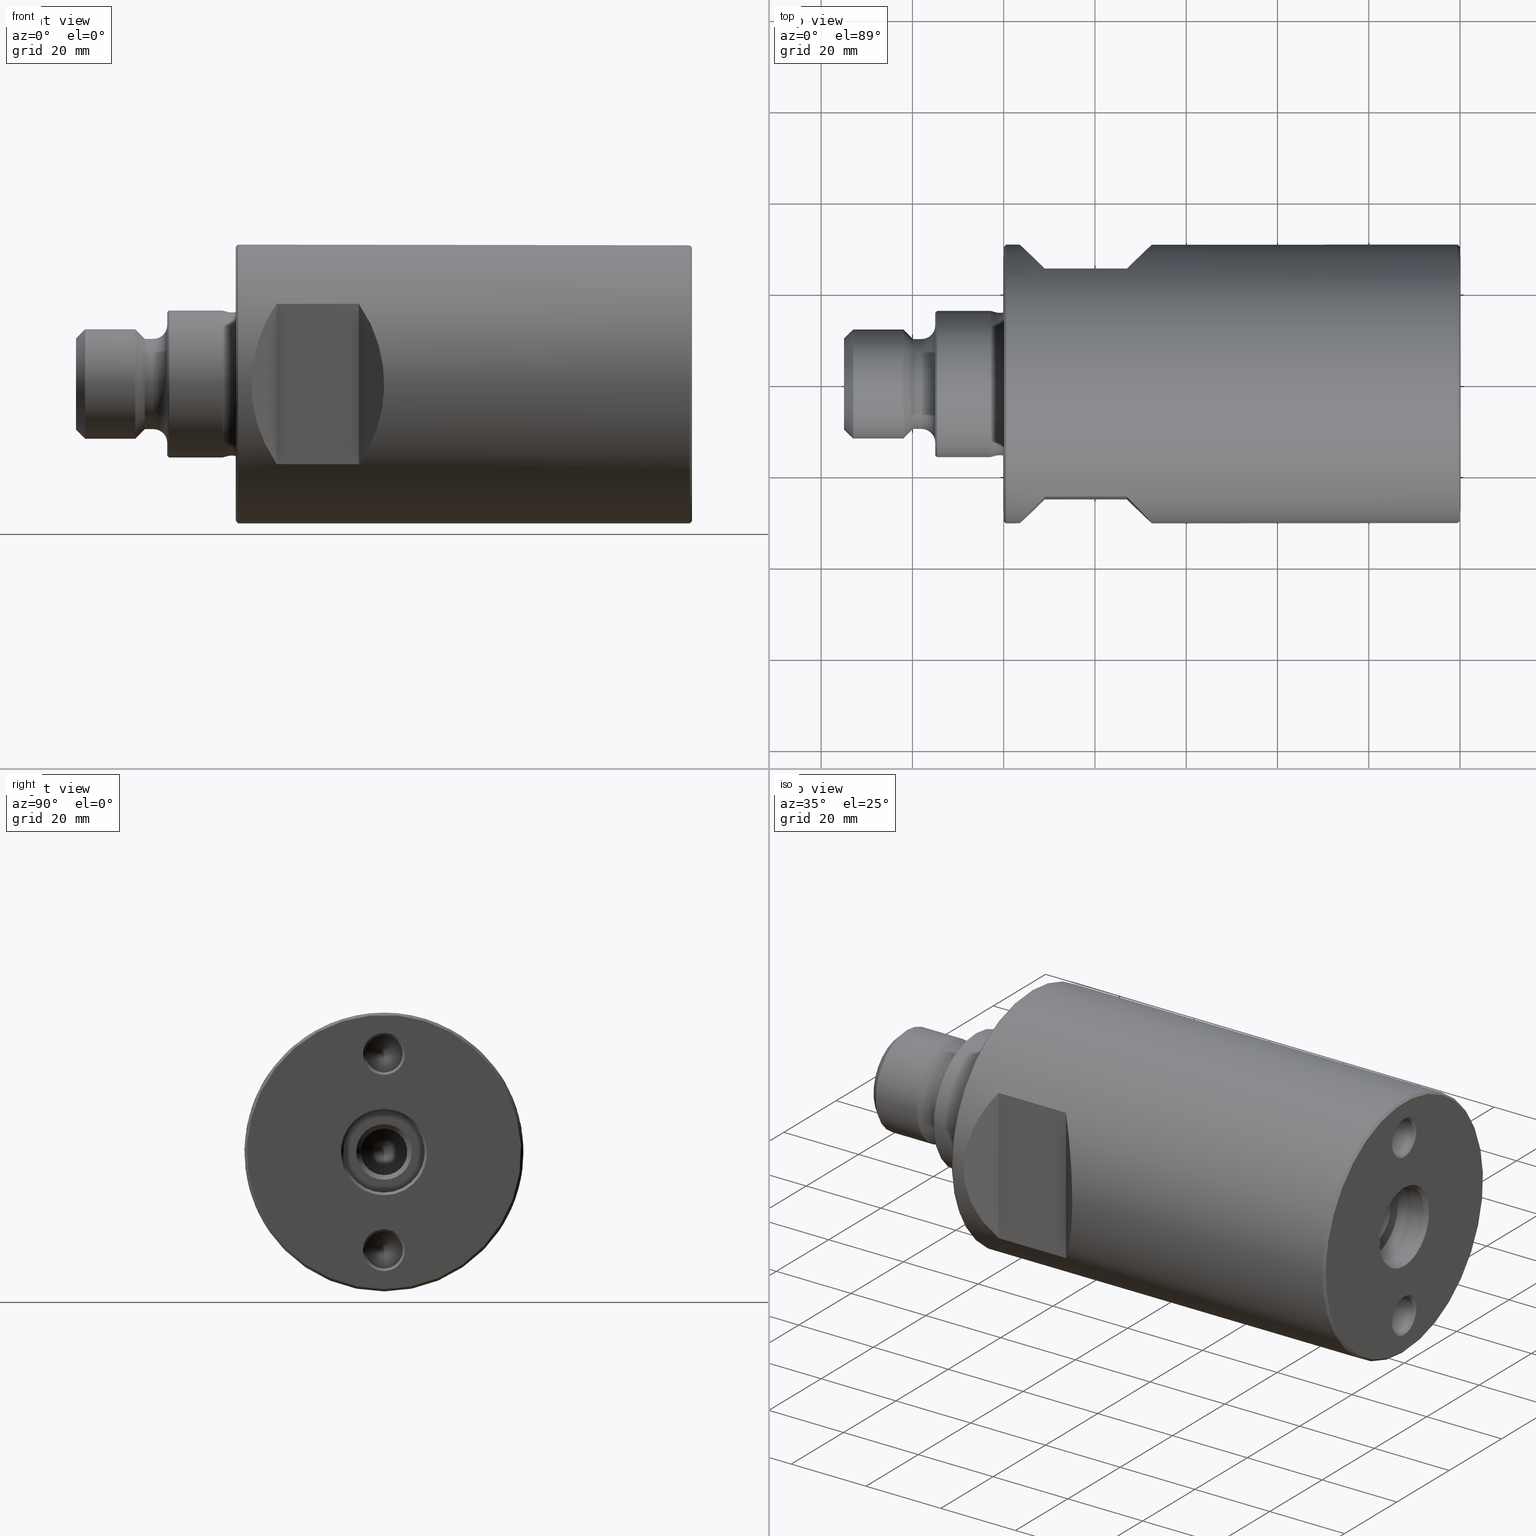
[diagram: canonical four-view strip — front | top / right | iso, engineering-drawing reading convention]
A machine part, canonical four-view strip (front | top / right | iso — engineering-drawing reading convention). The complete STEP part file that produces these views, byte-faithful:
ISO-10303-21;
HEADER;
FILE_DESCRIPTION (( 'STEP AP214' ),
    '1' );
FILE_NAME ('AD 61-100.STEP',
    '2014-07-01T07:30:07',
    ( '' ),
    ( '' ),
    'SwSTEP 2.0',
    'SolidWorks 2014',
    '' );
FILE_SCHEMA (( 'AUTOMOTIVE_DESIGN' ));
ENDSEC;

DATA;
#1 = FILL_AREA_STYLE ('',( #326 ) ) ;
#2 = DIRECTION ( 'NONE',  ( 0.7071067811865490200, 0.7071067811865460200, 0.0000000000000000000 ) ) ;
#3 = CIRCLE ( 'NONE', #184, 3.349999999999983700 ) ;
#4 = EDGE_LOOP ( 'NONE', ( #882 ) ) ;
#5 = CARTESIAN_POINT ( 'NONE',  ( -91.00000000000000000, -24.99999999999998600, 17.55854492832477800 ) ) ;
#6 = EDGE_CURVE ( 'NONE', #508, #508, #904, .T. ) ;
#7 = EDGE_LOOP ( 'NONE', ( #871 ) ) ;
#8 = DIRECTION ( 'NONE',  ( -1.000000000000000000, 0.0000000000000000000, 0.0000000000000000000 ) ) ;
#9 = CARTESIAN_POINT ( 'NONE',  ( -2.168404344971008900E-016, 0.0000000000000000000, 0.0000000000000000000 ) ) ;
#10 = EDGE_LOOP ( 'NONE', ( #664 ) ) ;
#11 = FACE_BOUND ( 'NONE', #267, .T. ) ;
#12 = DIRECTION ( 'NONE',  ( 1.000000000000000000, -0.0000000000000000000, -0.0000000000000000000 ) ) ;
#13 = EDGE_CURVE ( 'NONE', #17, #17, #341, .T. ) ;
#14 = DIRECTION ( 'NONE',  ( 1.000000000000000000, 0.0000000000000000000, 0.0000000000000000000 ) ) ;
#15 = DIRECTION ( 'NONE',  ( -1.000000000000000000, 0.0000000000000000000, 0.0000000000000000000 ) ) ;
#16 = VERTEX_POINT ( 'NONE', #123 ) ;
#17 = VERTEX_POINT ( 'NONE', #493 ) ;
#18 = DIRECTION ( 'NONE',  ( -1.927470528863120300E-016, -1.000000000000000000, 0.0000000000000000000 ) ) ;
#19 = FACE_OUTER_BOUND ( 'NONE', #224, .T. ) ;
#20 = FACE_OUTER_BOUND ( 'NONE', #596, .T. ) ;
#21 = ADVANCED_FACE ( 'NONE', ( #429 ), #524, .T. ) ;
#22 = CIRCLE ( 'NONE', #216, 15.72044450422653800 ) ;
#23 = EDGE_LOOP ( 'NONE', ( #310 ) ) ;
#24 = DIRECTION ( 'NONE',  ( 1.000000000000000000, 0.0000000000000000000, 0.0000000000000000000 ) ) ;
#25 = CARTESIAN_POINT ( 'NONE',  ( -73.00000000000001400, 24.99999999999998900, -17.55854492832478900 ) ) ;
#26 = DIRECTION ( 'NONE',  ( 0.0000000000000000000, 0.0000000000000000000, -1.000000000000000000 ) ) ;
#27 = AXIS2_PLACEMENT_3D ( 'NONE', #120, #638, #198 ) ;
#28 = PRESENTATION_STYLE_ASSIGNMENT (( #272 ) ) ;
#29 = ORIENTED_EDGE ( 'NONE', *, *, #148, .T. ) ;
#30 = CYLINDRICAL_SURFACE ( 'NONE', #454, 11.99999999999998600 ) ;
#31 = AXIS2_PLACEMENT_3D ( 'NONE', #535, #611, #26 ) ;
#32 = ORIENTED_EDGE ( 'NONE', *, *, #175, .F. ) ;
#33 = FACE_OUTER_BOUND ( 'NONE', #379, .T. ) ;
#34 = DIRECTION ( 'NONE',  ( 1.000000000000000000, -0.0000000000000000000, -0.0000000000000000000 ) ) ;
#35 = PLANE ( 'NONE',  #206 ) ;
#36 = CARTESIAN_POINT ( 'NONE',  ( -45.00000000000000000, 0.0000000000000000000, -5.099999999999989000 ) ) ;
#37 = EDGE_LOOP ( 'NONE', ( #633 ) ) ;
#38 = CARTESIAN_POINT ( 'NONE',  ( -8.000000000000000000, 0.0000000000000000000, 0.0000000000000000000 ) ) ;
#39 = VERTEX_POINT ( 'NONE', #500 ) ;
#40 =( NAMED_UNIT ( * ) PLANE_ANGLE_UNIT ( ) SI_UNIT ( $, .RADIAN. ) );
#41 = VERTEX_POINT ( 'NONE', #870 ) ;
#42 = AXIS2_PLACEMENT_3D ( 'NONE', #458, #821, #600 ) ;
#43 = CARTESIAN_POINT ( 'NONE',  ( -100.0000000000000000, 30.54999999999998600, 0.0000000000000000000 ) ) ;
#44 = DIRECTION ( 'NONE',  ( 0.0000000000000000000, 0.0000000000000000000, 1.000000000000000000 ) ) ;
#45 = EDGE_LOOP ( 'NONE', ( #890 ) ) ;
#46 = FACE_OUTER_BOUND ( 'NONE', #893, .T. ) ;
#47 = VERTEX_POINT ( 'NONE', #257 ) ;
#48 = DIRECTION ( 'NONE',  ( 0.0000000000000000000, 0.0000000000000000000, 1.000000000000000000 ) ) ;
#49 = AXIS2_PLACEMENT_3D ( 'NONE', #942, #281, #791 ) ;
#50 = CARTESIAN_POINT ( 'NONE',  ( -99.80583915875506300, 0.0000000000000000000, 0.0000000000000000000 ) ) ;
#51 = AXIS2_PLACEMENT_3D ( 'NONE', #413, #52, #110 ) ;
#52 = DIRECTION ( 'NONE',  ( 1.000000000000000000, -0.0000000000000000000, -0.0000000000000000000 ) ) ;
#53 = COLOUR_RGB ( '',0.5019607843137254800, 0.5019607843137254800, 0.5019607843137254800 ) ;
#54 = EDGE_LOOP ( 'NONE', ( #684 ) ) ;
#55 = FACE_BOUND ( 'NONE', #453, .T. ) ;
#56 = EDGE_LOOP ( 'NONE', ( #929 ) ) ;
#57 = EDGE_CURVE ( 'NONE', #16, #16, #531, .T. ) ;
#58 = CARTESIAN_POINT ( 'NONE',  ( 0.0000000000000000000, 0.0000000000000000000, 0.0000000000000000000 ) ) ;
#59 = CARTESIAN_POINT ( 'NONE',  ( 1.068588757372465700, 0.0000000000000000000, 0.0000000000000000000 ) ) ;
#60 = CARTESIAN_POINT ( 'NONE',  ( -8.000000000000000000, 0.0000000000000000000, -9.099999999999999600 ) ) ;
#61 = ADVANCED_FACE ( 'NONE', ( #926, #165 ), #723, .F. ) ;
#62 = CARTESIAN_POINT ( 'NONE',  ( -91.00000000000000000, -24.99999999999998600, 17.55854492832477800 ) ) ;
#63 = VERTEX_POINT ( 'NONE', #185 ) ;
#64 = EDGE_CURVE ( 'NONE', #529, #529, #142, .T. ) ;
#65 = CARTESIAN_POINT ( 'NONE',  ( -9.000000000000000000, -1.501337845277034300E-013, -21.50000000000000000 ) ) ;
#66 = CARTESIAN_POINT ( 'NONE',  ( 0.0000000000000000000, 0.0000000000000000000, 0.0000000000000000000 ) ) ;
#67 = CIRCLE ( 'NONE', #826, 9.099999999999997900 ) ;
#68 = ADVANCED_FACE ( 'NONE', ( #699, #647 ), #869, .T. ) ;
#69 = DIRECTION ( 'NONE',  ( 0.0000000000000000000, 0.0000000000000000000, -1.000000000000000000 ) ) ;
#70 =( NAMED_UNIT ( * ) PLANE_ANGLE_UNIT ( ) SI_UNIT ( $, .RADIAN. ) );
#71 = SURFACE_STYLE_USAGE ( .BOTH. , #507 ) ;
#72 = DIRECTION ( 'NONE',  ( 0.0000000000000000000, 0.0000000000000000000, 1.000000000000000000 ) ) ;
#73 = ADVANCED_FACE ( 'NONE', ( #371, #554 ), #771, .F. ) ;
#74 = ORIENTED_EDGE ( 'NONE', *, *, #377, .F. ) ;
#75 = TOROIDAL_SURFACE ( 'NONE', #42, 12.89999999999998800, 3.000000000000000900 ) ;
#76 = AXIS2_PLACEMENT_3D ( 'NONE', #43, #339, #847 ) ;
#77 = VECTOR ( 'NONE', #875, 1000.000000000000000 ) ;
#78 = EDGE_LOOP ( 'NONE', ( #799 ) ) ;
#79 = EDGE_CURVE ( 'NONE', #463, #463, #187, .T. ) ;
#80 = CARTESIAN_POINT ( 'NONE',  ( -65.34506517690874700, -32.65493482309124600, -6.659386065305054300 ) ) ;
#81 = DIRECTION ( 'NONE',  ( 0.0000000000000000000, 0.0000000000000000000, -1.000000000000000000 ) ) ;
#82 = CONICAL_SURFACE ( 'NONE', #319, 9.477350269189619400, 0.5235987755982937100 ) ;
#83 = VERTEX_POINT ( 'NONE', #939 ) ;
#84 = CONICAL_SURFACE ( 'NONE', #652, 16.19999999999998500, 0.7853981633974309600 ) ;
#85 = FACE_OUTER_BOUND ( 'NONE', #95, .T. ) ;
#86 = CARTESIAN_POINT ( 'NONE',  ( -73.00000000000001400, -24.99999999999998900, -20.00000000000000000 ) ) ;
#87 = CARTESIAN_POINT ( 'NONE',  ( -91.00000000000000000, 24.99999999999998600, 17.55854492832477800 ) ) ;
#88 = ORIENTED_EDGE ( 'NONE', *, *, #363, .T. ) ;
#89 = AXIS2_PLACEMENT_3D ( 'NONE', #66, #214, #656 ) ;
#90 = ADVANCED_FACE ( 'NONE', ( #945, #749 ), #603, .F. ) ;
#91 = DIRECTION ( 'NONE',  ( 0.0000000000000000000, 0.0000000000000000000, -1.000000000000000000 ) ) ;
#92 = VERTEX_POINT ( 'NONE', #36 ) ;
#93 = DIRECTION ( 'NONE',  ( 0.0000000000000000000, 0.0000000000000000000, -1.000000000000000000 ) ) ;
#94 = AXIS2_PLACEMENT_3D ( 'NONE', #397, #912, #469 ) ;
#95 = EDGE_LOOP ( 'NONE', ( #889 ) ) ;
#96 = CIRCLE ( 'NONE', #881, 4.100000000000010300 ) ;
#97 = ORIENTED_EDGE ( 'NONE', *, *, #446, .T. ) ;
#98 = ORIENTED_EDGE ( 'NONE', *, *, #57, .F. ) ;
#99 = DIRECTION ( 'NONE',  ( 1.000000000000000000, -0.0000000000000000000, -0.0000000000000000000 ) ) ;
#100 = DIRECTION ( 'NONE',  ( -0.7071067811865464600, -0.7071067811865486800, 0.0000000000000000000 ) ) ;
#101 = CARTESIAN_POINT ( 'NONE',  ( -101.3013932591768900, 0.0000000000000000000, -15.69999999999999200 ) ) ;
#102 = ORIENTED_EDGE ( 'NONE', *, *, #697, .F. ) ;
#103 = FACE_OUTER_BOUND ( 'NONE', #461, .T. ) ;
#104 = FACE_OUTER_BOUND ( 'NONE', #54, .T. ) ;
#105 = EDGE_CURVE ( 'NONE', #804, #804, #409, .T. ) ;
#106 = ORIENTED_EDGE ( 'NONE', *, *, #509, .F. ) ;
#107 = DIRECTION ( 'NONE',  ( 0.0000000000000000000, 0.0000000000000000000, -1.000000000000000000 ) ) ;
#108 = PRODUCT_CONTEXT ( 'NONE', #692, 'mechanical' ) ;
#109 = CYLINDRICAL_SURFACE ( 'NONE', #831, 16.10000000000000100 ) ;
#110 = DIRECTION ( 'NONE',  ( 0.0000000000000000000, 0.0000000000000000000, -1.000000000000000000 ) ) ;
#111 = ORIENTED_EDGE ( 'NONE', *, *, #764, .T. ) ;
#112 = CIRCLE ( 'NONE', #874, 17.76503003164297900 ) ;
#113 = DIRECTION ( 'NONE',  ( 0.0000000000000000000, 0.0000000000000000000, -1.000000000000000000 ) ) ;
#114 = FACE_OUTER_BOUND ( 'NONE', #347, .T. ) ;
#115 = DIRECTION ( 'NONE',  ( -1.000000000000000000, 0.0000000000000000000, 0.0000000000000000000 ) ) ;
#116 = ORIENTED_EDGE ( 'NONE', *, *, #860, .T. ) ;
#117 = STYLED_ITEM ( 'NONE', ( #28 ), #944 ) ;
#118 = CARTESIAN_POINT ( 'NONE',  ( -100.4000000000000300, 0.0000000000000000000, 0.0000000000000000000 ) ) ;
#119 = PRODUCT_DEFINITION_SHAPE ( 'NONE', 'NONE',  #811 ) ;
#120 = CARTESIAN_POINT ( 'NONE',  ( -1.000000000000000900, 0.0000000000000000000, 0.0000000000000000000 ) ) ;
#121 = ORIENTED_EDGE ( 'NONE', *, *, #592, .T. ) ;
#122 = EDGE_CURVE ( 'NONE', #380, #841, #211, .T. ) ;
#123 = CARTESIAN_POINT ( 'NONE',  ( -0.5000000000000030000, -1.501337845277034300E-013, -25.60000000000001200 ) ) ;
#124 = DIRECTION ( 'NONE',  ( 1.000000000000000000, -0.0000000000000000000, -0.0000000000000000000 ) ) ;
#125 =( BOUNDED_CURVE ( )  B_SPLINE_CURVE ( 3, ( #441, #373, #801, #5 ),
 .UNSPECIFIED., .F., .F. ) 
 B_SPLINE_CURVE_WITH_KNOTS ( ( 4, 4 ),
 ( 2.529296741777659300, 3.753888565401927400 ),
 .UNSPECIFIED. ) 
 CURVE ( )  GEOMETRIC_REPRESENTATION_ITEM ( )  RATIONAL_B_SPLINE_CURVE ( ( 1.000000000000000000, 0.8788870703764322100, 0.8788870703764322100, 1.000000000000000000 ) ) 
 REPRESENTATION_ITEM ( '' )  );
#126 = ADVANCED_FACE ( 'NONE', ( #19, #668 ), #625, .F. ) ;
#127 = EDGE_LOOP ( 'NONE', ( #275 ) ) ;
#128 = CONICAL_SURFACE ( 'NONE', #567, 15.72044450422653800, 0.2617993877991498000 ) ;
#129 = CARTESIAN_POINT ( 'NONE',  ( -9.000000000000000000, 0.0000000000000000000, 17.39999999999998800 ) ) ;
#130 = EDGE_LOOP ( 'NONE', ( #809 ) ) ;
#131 = ORIENTED_EDGE ( 'NONE', *, *, #802, .F. ) ;
#132 = FACE_BOUND ( 'NONE', #484, .T. ) ;
#133 = DIRECTION ( 'NONE',  ( 0.0000000000000000000, 0.0000000000000000000, -1.000000000000000000 ) ) ;
#134 = DIRECTION ( 'NONE',  ( 1.000000000000000000, -0.0000000000000000000, -0.0000000000000000000 ) ) ;
#135 = ADVANCED_FACE ( 'NONE', ( #687, #85 ), #84, .T. ) ;
#136 = AXIS2_PLACEMENT_3D ( 'NONE', #210, #288, #650 ) ;
#137 = DIRECTION ( 'NONE',  ( 1.000000000000000000, -0.0000000000000000000, -0.0000000000000000000 ) ) ;
#138 = DIRECTION ( 'NONE',  ( 1.000000000000000000, -0.0000000000000000000, -0.0000000000000000000 ) ) ;
#139 = ADVANCED_FACE ( 'NONE', ( #280, #232 ), #796, .F. ) ;
#140 =( NAMED_UNIT ( * ) PLANE_ANGLE_UNIT ( ) SI_UNIT ( $, .RADIAN. ) );
#141 = CARTESIAN_POINT ( 'NONE',  ( -100.0000000000000000, 0.0000000000000000000, 0.0000000000000000000 ) ) ;
#142 = CIRCLE ( 'NONE', #161, 4.600000000000013900 ) ;
#143 = FACE_OUTER_BOUND ( 'NONE', #4, .T. ) ;
#144 = CIRCLE ( 'NONE', #391, 16.10000000000000100 ) ;
#145 = EDGE_LOOP ( 'NONE', ( #398 ) ) ;
#146 = DIRECTION ( 'NONE',  ( 0.0000000000000000000, 0.0000000000000000000, -1.000000000000000000 ) ) ;
#147 = AXIS2_PLACEMENT_3D ( 'NONE', #711, #785, #428 ) ;
#148 = EDGE_CURVE ( 'NONE', #790, #790, #478, .T. ) ;
#149 = EDGE_LOOP ( 'NONE', ( #102 ) ) ;
#150 = ORIENTED_EDGE ( 'NONE', *, *, #666, .F. ) ;
#151 = VERTEX_POINT ( 'NONE', #789 ) ;
#152 = EDGE_CURVE ( 'NONE', #779, #779, #818, .T. ) ;
#153 = EDGE_LOOP ( 'NONE', ( #665 ) ) ;
#154 = SURFACE_STYLE_FILL_AREA ( #1 ) ;
#155 = CONICAL_SURFACE ( 'NONE', #908, 1732.050807568823500, 1.047197551196584300 ) ;
#156 = DIRECTION ( 'NONE',  ( -0.0000000000000000000, -0.0000000000000000000, 1.000000000000000000 ) ) ;
#157 = STYLED_ITEM ( 'NONE', ( #927 ), #577 ) ;
#158 = EDGE_LOOP ( 'NONE', ( #812, #445, #400, #258 ) ) ;
#159 = CARTESIAN_POINT ( 'NONE',  ( -5.423073944476820800, 0.0000000000000000000, 0.0000000000000000000 ) ) ;
#160 = AXIS2_PLACEMENT_3D ( 'NONE', #38, #548, #107 ) ;
#161 = AXIS2_PLACEMENT_3D ( 'NONE', #561, #115, #632 ) ;
#162 = CARTESIAN_POINT ( 'NONE',  ( -1129.099999999999900, 0.0000000000000000000, 0.0000000000000000000 ) ) ;
#163 = ADVANCED_FACE ( 'NONE', ( #387, #103 ), #30, .T. ) ;
#164 = VERTEX_POINT ( 'NONE', #622 ) ;
#165 = FACE_OUTER_BOUND ( 'NONE', #827, .T. ) ;
#166 = FACE_BOUND ( 'NONE', #10, .T. ) ;
#167 = EDGE_LOOP ( 'NONE', ( #752 ) ) ;
#168 = FACE_BOUND ( 'NONE', #145, .T. ) ;
#169 = AXIS2_PLACEMENT_3D ( 'NONE', #896, #15, #717 ) ;
#170 = PLANE ( 'NONE',  #618 ) ;
#171 = ORIENTED_EDGE ( 'NONE', *, *, #105, .T. ) ;
#172 = CARTESIAN_POINT ( 'NONE',  ( -133.0000000000000000, 0.0000000000000000000, 0.0000000000000000000 ) ) ;
#173 = PRESENTATION_LAYER_ASSIGNMENT (  '', '', ( #117 ) ) ;
#174 = CARTESIAN_POINT ( 'NONE',  ( -4.818676322157802300E-015, -25.00000000000000400, 17.55854492832476800 ) ) ;
#175 = EDGE_CURVE ( 'NONE', #380, #841, #125, .T. ) ;
#176 = EDGE_LOOP ( 'NONE', ( #616 ) ) ;
#177 = LINE ( 'NONE', #237, #834 ) ;
#178 = EDGE_LOOP ( 'NONE', ( #259 ) ) ;
#179 = ORIENTED_EDGE ( 'NONE', *, *, #250, .F. ) ;
#180 = CIRCLE ( 'NONE', #864, 30.04999999999997900 ) ;
#181 = AXIS2_PLACEMENT_3D ( 'NONE', #50, #560, #113 ) ;
#182 = CARTESIAN_POINT ( 'NONE',  ( -135.0000000000000000, 0.0000000000000000000, -3.349999999999983700 ) ) ;
#183 = CARTESIAN_POINT ( 'NONE',  ( -135.0000000000000000, 0.0000000000000000000, 0.0000000000000000000 ) ) ;
#184 = AXIS2_PLACEMENT_3D ( 'NONE', #332, #839, #404 ) ;
#185 = CARTESIAN_POINT ( 'NONE',  ( -135.0000000000000000, 0.0000000000000000000, -9.999999999999973400 ) ) ;
#186 = APPLICATION_PROTOCOL_DEFINITION ( 'draft international standard', 'automotive_design', 1998, #628 ) ;
#187 = CIRCLE ( 'NONE', #932, 9.477350269189619400 ) ;
#188 = LINE ( 'NONE', #174, #833 ) ;
#189 = FACE_OUTER_BOUND ( 'NONE', #202, .T. ) ;
#190 = ORIENTED_EDGE ( 'NONE', *, *, #921, .T. ) ;
#191 = CARTESIAN_POINT ( 'NONE',  ( -8.000000000000000000, 9.099999999999999600, 0.0000000000000000000 ) ) ;
#192 = CARTESIAN_POINT ( 'NONE',  ( -0.5000000000000030000, -1.501337845277034300E-013, -21.50000000000000000 ) ) ;
#193 = DIRECTION ( 'NONE',  ( 0.0000000000000000000, 0.0000000000000000000, 1.000000000000000000 ) ) ;
#194 =( GEOMETRIC_REPRESENTATION_CONTEXT ( 3 ) GLOBAL_UNCERTAINTY_ASSIGNED_CONTEXT ( ( #255 ) ) GLOBAL_UNIT_ASSIGNED_CONTEXT ( ( #590, #140, #658 ) ) REPRESENTATION_CONTEXT ( 'NONE', 'WORKASPACE' ) );
#195 = DIRECTION ( 'NONE',  ( 0.0000000000000000000, 0.0000000000000000000, -1.000000000000000000 ) ) ;
#196 = CARTESIAN_POINT ( 'NONE',  ( 0.0000000000000000000, 0.0000000000000000000, 0.0000000000000000000 ) ) ;
#197 = DIRECTION ( 'NONE',  ( 0.0000000000000000000, 0.0000000000000000000, -1.000000000000000000 ) ) ;
#198 = DIRECTION ( 'NONE',  ( 0.0000000000000000000, 0.0000000000000000000, -1.000000000000000000 ) ) ;
#199 = EDGE_LOOP ( 'NONE', ( #284 ) ) ;
#200 = CARTESIAN_POINT ( 'NONE',  ( -135.0000000000000000, 0.0000000000000000000, 0.0000000000000000000 ) ) ;
#201 = FACE_BOUND ( 'NONE', #859, .T. ) ;
#202 = EDGE_LOOP ( 'NONE', ( #705, #179 ) ) ;
#203 = CARTESIAN_POINT ( 'NONE',  ( 0.0000000000000000000, 0.0000000000000000000, 16.89999999999998400 ) ) ;
#204 = PRESENTATION_LAYER_ASSIGNMENT (  '', '', ( #157 ) ) ;
#205 = CARTESIAN_POINT ( 'NONE',  ( -133.0000000000000000, 0.0000000000000000000, -11.99999999999998400 ) ) ;
#206 = AXIS2_PLACEMENT_3D ( 'NONE', #543, #100, #621 ) ;
#207 = EDGE_CURVE ( 'NONE', #784, #540, #797, .T. ) ;
#208 = FACE_OUTER_BOUND ( 'NONE', #315, .T. ) ;
#209 = ADVANCED_FACE ( 'NONE', ( #613 ), #155, .F. ) ;
#210 = CARTESIAN_POINT ( 'NONE',  ( -100.0000000000000000, 0.0000000000000000000, 0.0000000000000000000 ) ) ;
#211 = LINE ( 'NONE', #307, #585 ) ;
#212 = FACE_BOUND ( 'NONE', #521, .T. ) ;
#213 = EDGE_LOOP ( 'NONE', ( #218 ) ) ;
#214 = DIRECTION ( 'NONE',  ( -1.000000000000000000, 0.0000000000000000000, 0.0000000000000000000 ) ) ;
#215 = ADVANCED_FACE ( 'NONE', ( #819, #626 ), #75, .F. ) ;
#216 = AXIS2_PLACEMENT_3D ( 'NONE', #691, #251, #768 ) ;
#217 = DIRECTION ( 'NONE',  ( 0.0000000000000000000, 0.0000000000000000000, 1.000000000000000000 ) ) ;
#218 = ORIENTED_EDGE ( 'NONE', *, *, #105, .F. ) ;
#219 = MECHANICAL_DESIGN_GEOMETRIC_PRESENTATION_REPRESENTATION (  '', ( #117 ), #269 ) ;
#220 = ORIENTED_EDGE ( 'NONE', *, *, #516, .F. ) ;
#221 = CONICAL_SURFACE ( 'NONE', #528, 4.100000000000013000, 0.7853981633974473900 ) ;
#222 = EDGE_LOOP ( 'NONE', ( #121 ) ) ;
#223 = AXIS2_PLACEMENT_3D ( 'NONE', #630, #558, #776 ) ;
#224 = EDGE_LOOP ( 'NONE', ( #510 ) ) ;
#225 = CARTESIAN_POINT ( 'NONE',  ( -0.5000000000000030000, 0.0000000000000000000, 21.50000000000000000 ) ) ;
#226 = AXIS2_PLACEMENT_3D ( 'NONE', #340, #773, #48 ) ;
#227 = EDGE_LOOP ( 'NONE', ( #190 ) ) ;
#228 = UNCERTAINTY_MEASURE_WITH_UNIT (LENGTH_MEASURE( 1.000000000000000100E-005 ), #479, 'distance_accuracy_value', 'NONE');
#229 = DIRECTION ( 'NONE',  ( 0.0000000000000000000, 0.0000000000000000000, -1.000000000000000000 ) ) ;
#230 = CARTESIAN_POINT ( 'NONE',  ( -131.9256098165652100, 0.0000000000000000000, 0.0000000000000000000 ) ) ;
#231 = DIRECTION ( 'NONE',  ( -1.000000000000000000, 0.0000000000000000000, 0.0000000000000000000 ) ) ;
#232 = FACE_OUTER_BOUND ( 'NONE', #303, .T. ) ;
#233 = TOROIDAL_SURFACE ( 'NONE', #662, 16.29999999999998600, 0.5999999999999967600 ) ;
#234 = AXIS2_PLACEMENT_3D ( 'NONE', #172, #392, #93 ) ;
#235 = EDGE_LOOP ( 'NONE', ( #447 ) ) ;
#236 = EDGE_LOOP ( 'NONE', ( #822 ) ) ;
#237 = CARTESIAN_POINT ( 'NONE',  ( -73.00000000000001400, 24.99999999999998900, -20.00000000000000000 ) ) ;
#238 = ADVANCED_FACE ( 'NONE', ( #775 ), #680, .F. ) ;
#239 = CARTESIAN_POINT ( 'NONE',  ( -4.818676322157802300E-015, 25.00000000000000400, -17.55854492832476800 ) ) ;
#240 = AXIS2_PLACEMENT_3D ( 'NONE', #888, #304, #737 ) ;
#241 = DIRECTION ( 'NONE',  ( 1.927470528863120300E-016, -1.000000000000000000, 0.0000000000000000000 ) ) ;
#242 = EDGE_CURVE ( 'NONE', #601, #601, #636, .T. ) ;
#243 = EDGE_LOOP ( 'NONE', ( #375 ) ) ;
#244 = FACE_OUTER_BOUND ( 'NONE', #758, .T. ) ;
#245 = EDGE_CURVE ( 'NONE', #748, #748, #661, .T. ) ;
#246 = FACE_OUTER_BOUND ( 'NONE', #887, .T. ) ;
#247 = DIRECTION ( 'NONE',  ( -1.000000000000000000, 0.0000000000000000000, 0.0000000000000000000 ) ) ;
#248 = DIRECTION ( 'NONE',  ( 0.0000000000000000000, 0.0000000000000000000, -1.000000000000000000 ) ) ;
#249 = CARTESIAN_POINT ( 'NONE',  ( -101.4566846862384000, 0.0000000000000000000, -15.72044450422653800 ) ) ;
#250 = EDGE_CURVE ( 'NONE', #540, #784, #434, .T. ) ;
#251 = DIRECTION ( 'NONE',  ( 1.000000000000000000, -0.0000000000000000000, -0.0000000000000000000 ) ) ;
#252 = FILL_AREA_STYLE ('',( #840 ) ) ;
#253 = CYLINDRICAL_SURFACE ( 'NONE', #477, 30.54999999999999400 ) ;
#254 = ORIENTED_EDGE ( 'NONE', *, *, #852, .T. ) ;
#255 = UNCERTAINTY_MEASURE_WITH_UNIT (LENGTH_MEASURE( 1.000000000000000100E-005 ), #590, 'distance_accuracy_value', 'NONE');
#256 = DIRECTION ( 'NONE',  ( 1.000000000000000000, -0.0000000000000000000, -0.0000000000000000000 ) ) ;
#257 = CARTESIAN_POINT ( 'NONE',  ( -73.00000000000001400, 24.99999999999998900, -17.55854492832478900 ) ) ;
#258 = ORIENTED_EDGE ( 'NONE', *, *, #473, .F. ) ;
#259 = ORIENTED_EDGE ( 'NONE', *, *, #550, .T. ) ;
#260 = DIRECTION ( 'NONE',  ( 0.7071067811865486800, 0.7071067811865464600, 0.0000000000000000000 ) ) ;
#261 = ORIENTED_EDGE ( 'NONE', *, *, #620, .F. ) ;
#262 = DIRECTION ( 'NONE',  ( 0.0000000000000000000, 0.0000000000000000000, -1.000000000000000000 ) ) ;
#263 = VERTEX_POINT ( 'NONE', #643 ) ;
#264 = ORIENTED_EDGE ( 'NONE', *, *, #780, .T. ) ;
#265 = CONICAL_SURFACE ( 'NONE', #408, 8.900000000000000400, 0.1396263401595463600 ) ;
#266 = FACE_BOUND ( 'NONE', #334, .T. ) ;
#267 = EDGE_LOOP ( 'NONE', ( #418 ) ) ;
#268 = DIRECTION ( 'NONE',  ( -0.0000000000000000000, 0.0000000000000000000, -1.000000000000000000 ) ) ;
#269 =( GEOMETRIC_REPRESENTATION_CONTEXT ( 3 ) GLOBAL_UNCERTAINTY_ASSIGNED_CONTEXT ( ( #743 ) ) GLOBAL_UNIT_ASSIGNED_CONTEXT ( ( #783, #351, #861 ) ) REPRESENTATION_CONTEXT ( 'NONE', 'WORKASPACE' ) );
#270 = CARTESIAN_POINT ( 'NONE',  ( 0.0000000000000000000, 0.0000000000000000000, 0.0000000000000000000 ) ) ;
#271 = ORIENTED_EDGE ( 'NONE', *, *, #516, .T. ) ;
#272 = SURFACE_STYLE_USAGE ( .BOTH. , #706 ) ;
#273 = DIRECTION ( 'NONE',  ( 0.0000000000000000000, 0.0000000000000000000, -1.000000000000000000 ) ) ;
#274 = EDGE_CURVE ( 'NONE', #83, #83, #283, .T. ) ;
#275 = ORIENTED_EDGE ( 'NONE', *, *, #868, .T. ) ;
#276 = CARTESIAN_POINT ( 'NONE',  ( 0.0000000000000000000, 0.0000000000000000000, -30.05000000000000800 ) ) ;
#277 = CYLINDRICAL_SURFACE ( 'NONE', #421, 5.099999999999991700 ) ;
#278 = AXIS2_PLACEMENT_3D ( 'NONE', #556, #696, #260 ) ;
#279 = CARTESIAN_POINT ( 'NONE',  ( -102.8732050807569500, 0.0000000000000000000, 16.10000000000000100 ) ) ;
#280 = FACE_OUTER_BOUND ( 'NONE', #149, .T. ) ;
#281 = DIRECTION ( 'NONE',  ( -1.000000000000000000, 0.0000000000000000000, 0.0000000000000000000 ) ) ;
#282 = EDGE_LOOP ( 'NONE', ( #390 ) ) ;
#283 = CIRCLE ( 'NONE', #849, 1.574999999999983700 ) ;
#284 = ORIENTED_EDGE ( 'NONE', *, *, #852, .F. ) ;
#285 = EDGE_LOOP ( 'NONE', ( #640 ) ) ;
#286 = FACE_OUTER_BOUND ( 'NONE', #295, .T. ) ;
#287 = CARTESIAN_POINT ( 'NONE',  ( -9.000000000000000000, 0.0000000000000000000, 21.50000000000000000 ) ) ;
#288 = DIRECTION ( 'NONE',  ( -1.000000000000000000, 0.0000000000000000000, 0.0000000000000000000 ) ) ;
#289 = FILL_AREA_STYLE ('',( #502 ) ) ;
#290 = ADVANCED_FACE ( 'NONE', ( #132, #569 ), #443, .F. ) ;
#291 = CARTESIAN_POINT ( 'NONE',  ( -91.00000000000000000, -24.99999999999998600, -20.00000000000000000 ) ) ;
#292 = CARTESIAN_POINT ( 'NONE',  ( -9.000000000000000000, 0.0000000000000000000, 21.50000000000000000 ) ) ;
#293 = CARTESIAN_POINT ( 'NONE',  ( -115.0000000000000000, 0.0000000000000000000, 0.0000000000000000000 ) ) ;
#294 = VERTEX_POINT ( 'NONE', #101 ) ;
#295 = EDGE_LOOP ( 'NONE', ( #271 ) ) ;
#296 = CONICAL_SURFACE ( 'NONE', #552, 4.100000000000010300, 1.047197551196601900 ) ;
#297 = FACE_OUTER_BOUND ( 'NONE', #285, .T. ) ;
#298 = EDGE_CURVE ( 'NONE', #591, #591, #144, .T. ) ;
#299 = ORIENTED_EDGE ( 'NONE', *, *, #425, .F. ) ;
#300 = EDGE_CURVE ( 'NONE', #901, #901, #663, .T. ) ;
#301 = DIRECTION ( 'NONE',  ( 0.0000000000000000000, 0.0000000000000000000, -1.000000000000000000 ) ) ;
#302 = ORIENTED_EDGE ( 'NONE', *, *, #329, .F. ) ;
#303 = EDGE_LOOP ( 'NONE', ( #350 ) ) ;
#304 = DIRECTION ( 'NONE',  ( 1.000000000000000000, -0.0000000000000000000, -0.0000000000000000000 ) ) ;
#305 =( BOUNDED_CURVE ( )  B_SPLINE_CURVE ( 3, ( #829, #325, #464, #25 ),
 .UNSPECIFIED., .F., .F. ) 
 B_SPLINE_CURVE_WITH_KNOTS ( ( 4, 4 ),
 ( 5.670889395367451500, 6.895481218991721000 ),
 .UNSPECIFIED. ) 
 CURVE ( )  GEOMETRIC_REPRESENTATION_ITEM ( )  RATIONAL_B_SPLINE_CURVE ( ( 1.000000000000000000, 0.8788870703764319900, 0.8788870703764319900, 1.000000000000000000 ) ) 
 REPRESENTATION_ITEM ( '' )  );
#306 = PRESENTATION_STYLE_ASSIGNMENT (( #337 ) ) ;
#307 = CARTESIAN_POINT ( 'NONE',  ( -91.00000000000000000, -24.99999999999998600, -20.00000000000000000 ) ) ;
#308 = EDGE_LOOP ( 'NONE', ( #854 ) ) ;
#309 = DIRECTION ( 'NONE',  ( 1.000000000000000000, -0.0000000000000000000, -0.0000000000000000000 ) ) ;
#310 = ORIENTED_EDGE ( 'NONE', *, *, #697, .T. ) ;
#311 = CYLINDRICAL_SURFACE ( 'NONE', #578, 9.899999999999986100 ) ;
#312 = CARTESIAN_POINT ( 'NONE',  ( -98.65493482309126700, 32.65493482309123900, -6.659386065305042700 ) ) ;
#313 = EDGE_LOOP ( 'NONE', ( #823 ) ) ;
#314 = EDGE_CURVE ( 'NONE', #841, #540, #188, .T. ) ;
#315 = EDGE_LOOP ( 'NONE', ( #423 ) ) ;
#316 = DIRECTION ( 'NONE',  ( 0.0000000000000000000, 0.0000000000000000000, 1.000000000000000000 ) ) ;
#317 = ADVANCED_FACE ( 'NONE', ( #467, #389 ), #486, .F. ) ;
#318 = DIRECTION ( 'NONE',  ( 0.0000000000000000000, 0.0000000000000000000, -1.000000000000000000 ) ) ;
#319 = AXIS2_PLACEMENT_3D ( 'NONE', #844, #922, #336 ) ;
#320 = COLOUR_RGB ( '',0.5019607843137254800, 0.5019607843137254800, 0.5019607843137254800 ) ;
#321 = DIRECTION ( 'NONE',  ( -1.000000000000000000, 0.0000000000000000000, 0.0000000000000000000 ) ) ;
#322 = EDGE_LOOP ( 'NONE', ( #131 ) ) ;
#323 = FACE_OUTER_BOUND ( 'NONE', #916, .T. ) ;
#324 = FACE_BOUND ( 'NONE', #608, .T. ) ;
#325 = CARTESIAN_POINT ( 'NONE',  ( -65.34506517690874700, 32.65493482309123900, 6.659386065305063200 ) ) ;
#326 = FILL_AREA_STYLE_COLOUR ( '', #648 ) ;
#327 = ORIENTED_EDGE ( 'NONE', *, *, #314, .F. ) ;
#328 = FACE_BOUND ( 'NONE', #832, .T. ) ;
#329 = EDGE_CURVE ( 'NONE', #784, #380, #422, .T. ) ;
#330 = EDGE_LOOP ( 'NONE', ( #481, #487, #465, #457 ) ) ;
#331 = LINE ( 'NONE', #744, #727 ) ;
#332 = CARTESIAN_POINT ( 'NONE',  ( -135.0000000000000000, 0.0000000000000000000, 0.0000000000000000000 ) ) ;
#333 = CARTESIAN_POINT ( 'NONE',  ( -1.000000000000000900, 0.0000000000000000000, -8.900000000000000400 ) ) ;
#334 = EDGE_LOOP ( 'NONE', ( #589 ) ) ;
#335 = FACE_OUTER_BOUND ( 'NONE', #45, .T. ) ;
#336 = DIRECTION ( 'NONE',  ( 0.0000000000000000000, 0.0000000000000000000, -1.000000000000000000 ) ) ;
#337 = SURFACE_STYLE_USAGE ( .BOTH. , #769 ) ;
#338 = AXIS2_PLACEMENT_3D ( 'NONE', #795, #366, #876 ) ;
#339 = DIRECTION ( 'NONE',  ( -1.000000000000000000, 0.0000000000000000000, 0.0000000000000000000 ) ) ;
#340 = CARTESIAN_POINT ( 'NONE',  ( -115.0000000000000000, 16.19999999999998200, 0.0000000000000000000 ) ) ;
#341 = CIRCLE ( 'NONE', #489, 4.600000000000013900 ) ;
#342 = CARTESIAN_POINT ( 'NONE',  ( -91.00000000000000000, 24.99999999999998600, -17.55854492832478200 ) ) ;
#343 =( GEOMETRIC_REPRESENTATION_CONTEXT ( 3 ) GLOBAL_UNCERTAINTY_ASSIGNED_CONTEXT ( ( #474 ) ) GLOBAL_UNIT_ASSIGNED_CONTEXT ( ( #505, #70, #584 ) ) REPRESENTATION_CONTEXT ( 'NONE', 'WORKASPACE' ) );
#344 = ORIENTED_EDGE ( 'NONE', *, *, #64, .T. ) ;
#345 = CARTESIAN_POINT ( 'NONE',  ( -119.9000000000000300, 0.0000000000000000000, 0.0000000000000000000 ) ) ;
#346 = STYLED_ITEM ( 'NONE', ( #670 ), #163 ) ;
#347 = EDGE_LOOP ( 'NONE', ( #261 ) ) ;
#348 = DIRECTION ( 'NONE',  ( 1.000000000000000000, -0.0000000000000000000, -0.0000000000000000000 ) ) ;
#349 = DIRECTION ( 'NONE',  ( 1.000000000000000000, -0.0000000000000000000, -0.0000000000000000000 ) ) ;
#350 = ORIENTED_EDGE ( 'NONE', *, *, #274, .T. ) ;
#351 =( NAMED_UNIT ( * ) PLANE_ANGLE_UNIT ( ) SI_UNIT ( $, .RADIAN. ) );
#352 = VERTEX_POINT ( 'NONE', #129 ) ;
#353 = DIRECTION ( 'NONE',  ( 0.0000000000000000000, 0.0000000000000000000, -1.000000000000000000 ) ) ;
#354 = ORIENTED_EDGE ( 'NONE', *, *, #394, .T. ) ;
#355 = CIRCLE ( 'NONE', #693, 4.100000000000010300 ) ;
#356 = CARTESIAN_POINT ( 'NONE',  ( -0.5000000000000030000, 0.0000000000000000000, 17.39999999999998400 ) ) ;
#357 = PLANE ( 'NONE',  #147 ) ;
#358 = ORIENTED_EDGE ( 'NONE', *, *, #620, .T. ) ;
#359 = CONICAL_SURFACE ( 'NONE', #547, 4.100000000000010300, 1.047197551196601900 ) ;
#360 = ADVANCED_FACE ( 'NONE', ( #444 ), #170, .F. ) ;
#361 = AXIS2_PLACEMENT_3D ( 'NONE', #838, #99, #471 ) ;
#362 = CARTESIAN_POINT ( 'NONE',  ( -100.0000000000000000, 0.0000000000000000000, 30.04999999999997900 ) ) ;
#363 = EDGE_CURVE ( 'NONE', #468, #47, #305, .T. ) ;
#364 = DIRECTION ( 'NONE',  ( 0.0000000000000000000, 0.0000000000000000000, -1.000000000000000000 ) ) ;
#365 = PLANE ( 'NONE',  #49 ) ;
#366 = DIRECTION ( 'NONE',  ( 1.000000000000000000, -0.0000000000000000000, -0.0000000000000000000 ) ) ;
#367 = ADVANCED_FACE ( 'NONE', ( #532, #586 ), #555, .T. ) ;
#368 = AXIS2_PLACEMENT_3D ( 'NONE', #646, #728, #851 ) ;
#369 = PLANE ( 'NONE',  #598 ) ;
#370 = DIRECTION ( 'NONE',  ( 1.000000000000000000, -0.0000000000000000000, -0.0000000000000000000 ) ) ;
#371 = FACE_OUTER_BOUND ( 'NONE', #545, .T. ) ;
#372 = ADVANCED_FACE ( 'NONE', ( #335, #11 ), #265, .F. ) ;
#373 = CARTESIAN_POINT ( 'NONE',  ( -98.65493482309126700, -32.65493482309123900, -6.659386065305042700 ) ) ;
#374 =( GEOMETRIC_REPRESENTATION_CONTEXT ( 3 ) GLOBAL_UNCERTAINTY_ASSIGNED_CONTEXT ( ( #228 ) ) GLOBAL_UNIT_ASSIGNED_CONTEXT ( ( #479, #40, #549 ) ) REPRESENTATION_CONTEXT ( 'NONE', 'WORKASPACE' ) );
#375 = ORIENTED_EDGE ( 'NONE', *, *, #860, .F. ) ;
#376 = FACE_OUTER_BOUND ( 'NONE', #606, .T. ) ;
#377 = EDGE_CURVE ( 'NONE', #47, #468, #177, .T. ) ;
#378 = DIRECTION ( 'NONE',  ( 0.0000000000000000000, 0.0000000000000000000, 1.000000000000000000 ) ) ;
#379 = EDGE_LOOP ( 'NONE', ( #354 ) ) ;
#380 = VERTEX_POINT ( 'NONE', #825 ) ;
#381 = CIRCLE ( 'NONE', #181, 16.38350386057602400 ) ;
#382 = DIRECTION ( 'NONE',  ( 1.000000000000000000, -0.0000000000000000000, -0.0000000000000000000 ) ) ;
#383 = CARTESIAN_POINT ( 'NONE',  ( 0.0000000000000000000, -1.501337845277034300E-013, -21.50000000000000000 ) ) ;
#384 = VERTEX_POINT ( 'NONE', #766 ) ;
#385 = ADVANCED_FACE ( 'NONE', ( #522, #201 ), #221, .F. ) ;
#386 = AXIS2_PLACEMENT_3D ( 'NONE', #879, #450, #520 ) ;
#387 = FACE_OUTER_BOUND ( 'NONE', #7, .T. ) ;
#388 = CYLINDRICAL_SURFACE ( 'NONE', #562, 8.900000000000000400 ) ;
#389 = FACE_OUTER_BOUND ( 'NONE', #282, .T. ) ;
#390 = ORIENTED_EDGE ( 'NONE', *, *, #396, .F. ) ;
#391 = AXIS2_PLACEMENT_3D ( 'NONE', #683, #247, #760 ) ;
#392 = DIRECTION ( 'NONE',  ( 1.000000000000000000, -0.0000000000000000000, -0.0000000000000000000 ) ) ;
#393 = CARTESIAN_POINT ( 'NONE',  ( -114.4999999999999900, 0.0000000000000000000, 0.0000000000000000000 ) ) ;
#394 = EDGE_CURVE ( 'NONE', #865, #865, #700, .T. ) ;
#395 = VERTEX_POINT ( 'NONE', #362 ) ;
#396 = EDGE_CURVE ( 'NONE', #352, #352, #96, .T. ) ;
#397 = CARTESIAN_POINT ( 'NONE',  ( -118.0000000000000100, 0.0000000000000000000, 0.0000000000000000000 ) ) ;
#398 = ORIENTED_EDGE ( 'NONE', *, *, #79, .F. ) ;
#399 = FACE_BOUND ( 'NONE', #158, .T. ) ;
#400 = ORIENTED_EDGE ( 'NONE', *, *, #363, .F. ) ;
#401 = CARTESIAN_POINT ( 'NONE',  ( -8.000000000000000000, 0.0000000000000000000, 0.0000000000000000000 ) ) ;
#402 = CARTESIAN_POINT ( 'NONE',  ( -9.000000000000000000, -1.501337845277034300E-013, -21.50000000000000000 ) ) ;
#403 =( BOUNDED_CURVE ( )  B_SPLINE_CURVE ( 3, ( #525, #312, #452, #87 ),
 .UNSPECIFIED., .F., .T. ) 
 B_SPLINE_CURVE_WITH_KNOTS ( ( 4, 4 ),
 ( 2.529296741777659300, 3.753888565401927400 ),
 .UNSPECIFIED. ) 
 CURVE ( )  GEOMETRIC_REPRESENTATION_ITEM ( )  RATIONAL_B_SPLINE_CURVE ( ( 1.000000000000000000, 0.8788870703764322100, 0.8788870703764322100, 1.000000000000000000 ) ) 
 REPRESENTATION_ITEM ( '' )  );
#404 = DIRECTION ( 'NONE',  ( 0.0000000000000000000, 0.0000000000000000000, -1.000000000000000000 ) ) ;
#405 = SURFACE_STYLE_FILL_AREA ( #252 ) ;
#406 = EDGE_CURVE ( 'NONE', #47, #657, #905, .T. ) ;
#407 =( NAMED_UNIT ( * ) PLANE_ANGLE_UNIT ( ) SI_UNIT ( $, .RADIAN. ) );
#408 = AXIS2_PLACEMENT_3D ( 'NONE', #756, #911, #677 ) ;
#409 = CIRCLE ( 'NONE', #602, 30.05000000000000800 ) ;
#410 = COLOUR_RGB ( '',0.5019607843137254800, 0.5019607843137254800, 0.5019607843137254800 ) ;
#411 = DIRECTION ( 'NONE',  ( 1.000000000000000000, -0.0000000000000000000, -0.0000000000000000000 ) ) ;
#412 = PLANE ( 'NONE',  #767 ) ;
#413 = CARTESIAN_POINT ( 'NONE',  ( -99.50000000000000000, 0.0000000000000000000, 0.0000000000000000000 ) ) ;
#414 = VERTEX_POINT ( 'NONE', #205 ) ;
#415 = CARTESIAN_POINT ( 'NONE',  ( -131.9256098165652100, 0.0000000000000000000, 0.0000000000000000000 ) ) ;
#416 = CIRCLE ( 'NONE', #884, 9.899999999999986100 ) ;
#417 = DIRECTION ( 'NONE',  ( 1.000000000000000000, -0.0000000000000000000, -0.0000000000000000000 ) ) ;
#418 = ORIENTED_EDGE ( 'NONE', *, *, #6, .T. ) ;
#419 = FACE_BOUND ( 'NONE', #130, .T. ) ;
#420 = CARTESIAN_POINT ( 'NONE',  ( 0.0000000000000000000, 0.0000000000000000000, 0.0000000000000000000 ) ) ;
#421 = AXIS2_PLACEMENT_3D ( 'NONE', #482, #417, #933 ) ;
#422 = LINE ( 'NONE', #619, #738 ) ;
#423 = ORIENTED_EDGE ( 'NONE', *, *, #764, .F. ) ;
#424 = DIRECTION ( 'NONE',  ( 1.000000000000000000, -0.0000000000000000000, -0.0000000000000000000 ) ) ;
#425 = EDGE_CURVE ( 'NONE', #657, #913, #918, .T. ) ;
#426 = CARTESIAN_POINT ( 'NONE',  ( -9.000000000000003600, 0.0000000000000000000, -5.099999999999991700 ) ) ;
#427 = ADVANCED_FACE ( 'NONE', ( #143, #485 ), #388, .F. ) ;
#428 = DIRECTION ( 'NONE',  ( 0.7071067811865490200, -0.7071067811865460200, 0.0000000000000000000 ) ) ;
#429 = FACE_OUTER_BOUND ( 'NONE', #736, .T. ) ;
#430 = AXIS2_PLACEMENT_3D ( 'NONE', #572, #124, #642 ) ;
#431 = CARTESIAN_POINT ( 'NONE',  ( -99.80583915875506300, 0.0000000000000000000, -16.38350386057602400 ) ) ;
#432 = FACE_OUTER_BOUND ( 'NONE', #176, .T. ) ;
#433 = ADVANCED_FACE ( 'NONE', ( #782, #575 ), #233, .F. ) ;
#434 =( BOUNDED_CURVE ( )  B_SPLINE_CURVE ( 3, ( #886, #808, #80, #595 ),
 .UNSPECIFIED., .F., .F. ) 
 B_SPLINE_CURVE_WITH_KNOTS ( ( 4, 4 ),
 ( 5.670889395367451500, 6.895481218991721000 ),
 .UNSPECIFIED. ) 
 CURVE ( )  GEOMETRIC_REPRESENTATION_ITEM ( )  RATIONAL_B_SPLINE_CURVE ( ( 1.000000000000000000, 0.8788870703764319900, 0.8788870703764319900, 1.000000000000000000 ) ) 
 REPRESENTATION_ITEM ( '' )  );
#435 = CARTESIAN_POINT ( 'NONE',  ( 1.068588757372465700, 0.0000000000000000000, 0.0000000000000000000 ) ) ;
#436 = SURFACE_SIDE_STYLE ('',( #946 ) ) ;
#437 = DIRECTION ( 'NONE',  ( 0.0000000000000000000, 0.0000000000000000000, -1.000000000000000000 ) ) ;
#438 = DIRECTION ( 'NONE',  ( 0.7071067811865460200, -0.7071067811865490200, 0.0000000000000000000 ) ) ;
#439 = DIRECTION ( 'NONE',  ( -1.000000000000000000, 0.0000000000000000000, 0.0000000000000000000 ) ) ;
#440 = ADVANCED_FACE ( 'NONE', ( #246 ), #369, .T. ) ;
#441 = CARTESIAN_POINT ( 'NONE',  ( -91.00000000000000000, -24.99999999999998600, -17.55854492832478200 ) ) ;
#442 = EDGE_LOOP ( 'NONE', ( #614 ) ) ;
#443 = CONICAL_SURFACE ( 'NONE', #240, 6.099999999999998800, 0.7853981633974501700 ) ;
#444 = FACE_OUTER_BOUND ( 'NONE', #930, .T. ) ;
#445 = ORIENTED_EDGE ( 'NONE', *, *, #406, .F. ) ;
#446 = EDGE_CURVE ( 'NONE', #263, #263, #67, .T. ) ;
#447 = ORIENTED_EDGE ( 'NONE', *, *, #921, .F. ) ;
#448 = CARTESIAN_POINT ( 'NONE',  ( -9.000000000000003600, 0.0000000000000000000, 0.0000000000000000000 ) ) ;
#449 = CARTESIAN_POINT ( 'NONE',  ( -130.0093266739737000, 0.0000000000000000000, 0.0000000000000000000 ) ) ;
#450 = DIRECTION ( 'NONE',  ( 1.000000000000000000, -0.0000000000000000000, -0.0000000000000000000 ) ) ;
#451 = CARTESIAN_POINT ( 'NONE',  ( -0.5000000000000030000, 0.0000000000000000000, 21.50000000000000000 ) ) ;
#452 = CARTESIAN_POINT ( 'NONE',  ( -98.65493482309126700, 32.65493482309123900, 6.659386065305047200 ) ) ;
#453 = EDGE_LOOP ( 'NONE', ( #774 ) ) ;
#454 = AXIS2_PLACEMENT_3D ( 'NONE', #836, #539, #726 ) ;
#455 = DIRECTION ( 'NONE',  ( 0.0000000000000000000, 0.0000000000000000000, -1.000000000000000000 ) ) ;
#456 = ADVANCED_FACE ( 'NONE', ( #712, #20 ), #480, .T. ) ;
#457 = ORIENTED_EDGE ( 'NONE', *, *, #175, .T. ) ;
#458 = CARTESIAN_POINT ( 'NONE',  ( -118.0000000000000100, 0.0000000000000000000, 0.0000000000000000000 ) ) ;
#459 = CARTESIAN_POINT ( 'NONE',  ( -0.5000000000000030000, -1.501337845277034300E-013, -21.50000000000000000 ) ) ;
#460 = MECHANICAL_DESIGN_GEOMETRIC_PRESENTATION_REPRESENTATION (  '', ( #346 ), #194 ) ;
#461 = EDGE_LOOP ( 'NONE', ( #781 ) ) ;
#462 = EDGE_LOOP ( 'NONE', ( #571 ) ) ;
#463 = VERTEX_POINT ( 'NONE', #709 ) ;
#464 = CARTESIAN_POINT ( 'NONE',  ( -65.34506517690874700, 32.65493482309124600, -6.659386065305054300 ) ) ;
#465 = ORIENTED_EDGE ( 'NONE', *, *, #329, .T. ) ;
#466 = DIRECTION ( 'NONE',  ( 1.000000000000000000, -0.0000000000000000000, -0.0000000000000000000 ) ) ;
#467 = FACE_OUTER_BOUND ( 'NONE', #731, .T. ) ;
#468 = VERTEX_POINT ( 'NONE', #816 ) ;
#469 = DIRECTION ( 'NONE',  ( 0.0000000000000000000, 0.0000000000000000000, -1.000000000000000000 ) ) ;
#470 = STYLED_ITEM ( 'NONE', ( #306 ), #919 ) ;
#471 = DIRECTION ( 'NONE',  ( 0.0000000000000000000, 0.0000000000000000000, -1.000000000000000000 ) ) ;
#472 = DIRECTION ( 'NONE',  ( 0.0000000000000000000, 0.0000000000000000000, -1.000000000000000000 ) ) ;
#473 = EDGE_CURVE ( 'NONE', #913, #468, #331, .T. ) ;
#474 = UNCERTAINTY_MEASURE_WITH_UNIT (LENGTH_MEASURE( 1.000000000000000100E-005 ), #505, 'distance_accuracy_value', 'NONE');
#475 = DIRECTION ( 'NONE',  ( 0.0000000000000000000, 0.0000000000000000000, -1.000000000000000000 ) ) ;
#476 = FACE_OUTER_BOUND ( 'NONE', #222, .T. ) ;
#477 = AXIS2_PLACEMENT_3D ( 'NONE', #420, #348, #858 ) ;
#478 = CIRCLE ( 'NONE', #94, 9.899999999999986100 ) ;
#479 =( LENGTH_UNIT ( ) NAMED_UNIT ( * ) SI_UNIT ( .MILLI., .METRE. ) );
#480 = CYLINDRICAL_SURFACE ( 'NONE', #386, 15.69999999999998500 ) ;
#481 = ORIENTED_EDGE ( 'NONE', *, *, #314, .T. ) ;
#482 = CARTESIAN_POINT ( 'NONE',  ( 0.0000000000000000000, 0.0000000000000000000, 0.0000000000000000000 ) ) ;
#483 = PLANE ( 'NONE',  #226 ) ;
#484 = EDGE_LOOP ( 'NONE', ( #763 ) ) ;
#485 = FACE_OUTER_BOUND ( 'NONE', #227, .T. ) ;
#486 = CYLINDRICAL_SURFACE ( 'NONE', #361, 4.100000000000013000 ) ;
#487 = ORIENTED_EDGE ( 'NONE', *, *, #250, .T. ) ;
#488 = DIRECTION ( 'NONE',  ( 0.0000000000000000000, 0.0000000000000000000, -1.000000000000000000 ) ) ;
#489 = AXIS2_PLACEMENT_3D ( 'NONE', #383, #898, #455 ) ;
#490 = FILL_AREA_STYLE_COLOUR ( '', #320 ) ;
#491 = DIRECTION ( 'NONE',  ( 1.000000000000000000, -0.0000000000000000000, -0.0000000000000000000 ) ) ;
#492 = ORIENTED_EDGE ( 'NONE', *, *, #754, .T. ) ;
#493 = CARTESIAN_POINT ( 'NONE',  ( 0.0000000000000000000, -1.501337845277034300E-013, -26.10000000000001200 ) ) ;
#494 = VERTEX_POINT ( 'NONE', #686 ) ;
#495 = CARTESIAN_POINT ( 'NONE',  ( -114.5999999999999800, 0.0000000000000000000, -16.10000000000000100 ) ) ;
#496 = ORIENTED_EDGE ( 'NONE', *, *, #207, .T. ) ;
#497 = CIRCLE ( 'NONE', #623, 5.099999999999989000 ) ;
#498 = AXIS2_PLACEMENT_3D ( 'NONE', #401, #915, #472 ) ;
#499 = EDGE_LOOP ( 'NONE', ( #704 ) ) ;
#500 = CARTESIAN_POINT ( 'NONE',  ( -100.4000000000000300, 0.0000000000000000000, -15.69999999999997400 ) ) ;
#501 = DIRECTION ( 'NONE',  ( 1.000000000000000000, -0.0000000000000000000, -0.0000000000000000000 ) ) ;
#502 = FILL_AREA_STYLE_COLOUR ( '', #410 ) ;
#503 = EDGE_CURVE ( 'NONE', #657, #913, #403, .T. ) ;
#504 = ADVANCED_FACE ( 'NONE', ( #104 ), #359, .F. ) ;
#505 =( LENGTH_UNIT ( ) NAMED_UNIT ( * ) SI_UNIT ( .MILLI., .METRE. ) );
#506 = ADVANCED_FACE ( 'NONE', ( #419, #114 ), #671, .F. ) ;
#507 = SURFACE_SIDE_STYLE ('',( #154 ) ) ;
#508 = VERTEX_POINT ( 'NONE', #570 ) ;
#509 = EDGE_CURVE ( 'NONE', #414, #414, #594, .T. ) ;
#510 = ORIENTED_EDGE ( 'NONE', *, *, #64, .F. ) ;
#511 = VECTOR ( 'NONE', #675, 1000.000000000000000 ) ;
#512 = ORIENTED_EDGE ( 'NONE', *, *, #148, .F. ) ;
#513 = PRESENTATION_LAYER_ASSIGNMENT (  '', '', ( #470 ) ) ;
#514 = ORIENTED_EDGE ( 'NONE', *, *, #152, .T. ) ;
#515 = DIRECTION ( 'NONE',  ( 0.0000000000000000000, 0.0000000000000000000, -1.000000000000000000 ) ) ;
#516 = EDGE_CURVE ( 'NONE', #757, #757, #604, .T. ) ;
#517 = DIRECTION ( 'NONE',  ( 1.000000000000000000, -0.0000000000000000000, -0.0000000000000000000 ) ) ;
#518 = ORIENTED_EDGE ( 'NONE', *, *, #425, .T. ) ;
#519 = CONICAL_SURFACE ( 'NONE', #89, 30.05000000000000800, 0.7853981633974415100 ) ;
#520 = DIRECTION ( 'NONE',  ( 0.0000000000000000000, 0.0000000000000000000, -1.000000000000000000 ) ) ;
#521 = EDGE_LOOP ( 'NONE', ( #344 ) ) ;
#522 = FACE_OUTER_BOUND ( 'NONE', #710, .T. ) ;
#523 = AXIS2_PLACEMENT_3D ( 'NONE', #200, #707, #273 ) ;
#524 = PLANE ( 'NONE',  #837 ) ;
#525 = CARTESIAN_POINT ( 'NONE',  ( -91.00000000000000000, 24.99999999999998600, -17.55854492832478200 ) ) ;
#526 = DIRECTION ( 'NONE',  ( 1.000000000000000000, -1.927470528863120300E-016, 0.0000000000000000000 ) ) ;
#527 = DIRECTION ( 'NONE',  ( 1.000000000000000000, -0.0000000000000000000, -0.0000000000000000000 ) ) ;
#528 = AXIS2_PLACEMENT_3D ( 'NONE', #459, #24, #318 ) ;
#529 = VERTEX_POINT ( 'NONE', #203 ) ;
#530 = ADVANCED_FACE ( 'NONE', ( #907, #297 ), #365, .T. ) ;
#531 = CIRCLE ( 'NONE', #537, 4.100000000000013000 ) ;
#532 = FACE_BOUND ( 'NONE', #805, .T. ) ;
#533 = EDGE_LOOP ( 'NONE', ( #872 ) ) ;
#534 = FACE_OUTER_BOUND ( 'NONE', #178, .T. ) ;
#535 = CARTESIAN_POINT ( 'NONE',  ( 0.0000000000000000000, 0.0000000000000000000, 0.0000000000000000000 ) ) ;
#536 = ORIENTED_EDGE ( 'NONE', *, *, #406, .T. ) ;
#537 = AXIS2_PLACEMENT_3D ( 'NONE', #192, #698, #262 ) ;
#538 = PRODUCT_DEFINITION_CONTEXT ( 'detailed design', #628, 'design' ) ;
#539 = DIRECTION ( 'NONE',  ( 1.000000000000000000, -0.0000000000000000000, -0.0000000000000000000 ) ) ;
#540 = VERTEX_POINT ( 'NONE', #721 ) ;
#541 = DIRECTION ( 'NONE',  ( -1.000000000000000000, 0.0000000000000000000, 0.0000000000000000000 ) ) ;
#542 = EDGE_LOOP ( 'NONE', ( #762 ) ) ;
#543 = CARTESIAN_POINT ( 'NONE',  ( -73.00000000000001400, -24.99999999999998900, -20.00000000000000000 ) ) ;
#544 = CARTESIAN_POINT ( 'NONE',  ( -122.0000000000000100, 0.0000000000000000000, -11.99999999999998600 ) ) ;
#545 = EDGE_LOOP ( 'NONE', ( #653 ) ) ;
#546 = CIRCLE ( 'NONE', #523, 9.999999999999973400 ) ;
#547 = AXIS2_PLACEMENT_3D ( 'NONE', #65, #501, #133 ) ;
#548 = DIRECTION ( 'NONE',  ( 1.000000000000000000, -0.0000000000000000000, -0.0000000000000000000 ) ) ;
#549 =( NAMED_UNIT ( * ) SI_UNIT ( $, .STERADIAN. ) SOLID_ANGLE_UNIT ( ) );
#550 = EDGE_CURVE ( 'NONE', #867, #867, #824, .T. ) ;
#551 = DIRECTION ( 'NONE',  ( 1.000000000000000000, 0.0000000000000000000, 0.0000000000000000000 ) ) ;
#552 = AXIS2_PLACEMENT_3D ( 'NONE', #292, #370, #722 ) ;
#553 = AXIS2_PLACEMENT_3D ( 'NONE', #196, #702, #268 ) ;
#554 = FACE_OUTER_BOUND ( 'NONE', #37, .T. ) ;
#555 = CONICAL_SURFACE ( 'NONE', #234, 11.99999999999998400, 0.7853981633974505000 ) ;
#556 = CARTESIAN_POINT ( 'NONE',  ( -73.00000000000001400, 24.99999999999998900, -20.00000000000000000 ) ) ;
#557 = FACE_OUTER_BOUND ( 'NONE', #786, .T. ) ;
#558 = DIRECTION ( 'NONE',  ( 1.000000000000000000, -0.0000000000000000000, -0.0000000000000000000 ) ) ;
#559 = ORIENTED_EDGE ( 'NONE', *, *, #242, .T. ) ;
#560 = DIRECTION ( 'NONE',  ( 1.000000000000000000, -0.0000000000000000000, -0.0000000000000000000 ) ) ;
#561 = CARTESIAN_POINT ( 'NONE',  ( 0.0000000000000000000, 0.0000000000000000000, 21.50000000000000000 ) ) ;
#562 = AXIS2_PLACEMENT_3D ( 'NONE', #435, #582, #941 ) ;
#563 = PLANE ( 'NONE',  #553 ) ;
#564 = DIRECTION ( 'NONE',  ( -1.000000000000000000, 0.0000000000000000000, 0.0000000000000000000 ) ) ;
#565 = FILL_AREA_STYLE ('',( #490 ) ) ;
#566 = MECHANICAL_DESIGN_GEOMETRIC_PRESENTATION_REPRESENTATION (  '', ( #470 ), #617 ) ;
#567 = AXIS2_PLACEMENT_3D ( 'NONE', #880, #439, #72 ) ;
#568 = ORIENTED_EDGE ( 'NONE', *, *, #713, .F. ) ;
#569 = FACE_OUTER_BOUND ( 'NONE', #649, .T. ) ;
#570 = CARTESIAN_POINT ( 'NONE',  ( -4.000000000000000000, 0.0000000000000000000, -8.900000000000000400 ) ) ;
#571 = ORIENTED_EDGE ( 'NONE', *, *, #79, .T. ) ;
#572 = CARTESIAN_POINT ( 'NONE',  ( -122.0000000000000100, 0.0000000000000000000, 0.0000000000000000000 ) ) ;
#573 = EDGE_CURVE ( 'NONE', #151, #151, #715, .T. ) ;
#574 = ORIENTED_EDGE ( 'NONE', *, *, #503, .T. ) ;
#575 = FACE_OUTER_BOUND ( 'NONE', #322, .T. ) ;
#576 = CARTESIAN_POINT ( 'NONE',  ( -115.0000000000000000, 0.0000000000000000000, 15.69999999999998900 ) ) ;
#577 = MANIFOLD_SOLID_BREP ( 'M12x1.75 Gewindekernloch1', #729 ) ;
#578 = AXIS2_PLACEMENT_3D ( 'NONE', #270, #349, #703 ) ;
#579 = ADVANCED_FACE ( 'NONE', ( #891, #772 ), #519, .T. ) ;
#580 = CARTESIAN_POINT ( 'NONE',  ( -102.8732050807569500, 0.0000000000000000000, 0.0000000000000000000 ) ) ;
#581 = CIRCLE ( 'NONE', #27, 8.900000000000000400 ) ;
#582 = DIRECTION ( 'NONE',  ( 1.000000000000000000, -0.0000000000000000000, -0.0000000000000000000 ) ) ;
#583 = CARTESIAN_POINT ( 'NONE',  ( -133.0000000000000000, 0.0000000000000000000, 0.0000000000000000000 ) ) ;
#584 =( NAMED_UNIT ( * ) SI_UNIT ( $, .STERADIAN. ) SOLID_ANGLE_UNIT ( ) );
#585 = VECTOR ( 'NONE', #156, 1000.000000000000000 ) ;
#586 = FACE_OUTER_BOUND ( 'NONE', #937, .T. ) ;
#587 = ADVANCED_FACE ( 'NONE', ( #761 ), #296, .F. ) ;
#588 = AXIS2_PLACEMENT_3D ( 'NONE', #580, #134, #651 ) ;
#589 = ORIENTED_EDGE ( 'NONE', *, *, #868, .F. ) ;
#590 =( LENGTH_UNIT ( ) NAMED_UNIT ( * ) SI_UNIT ( .MILLI., .METRE. ) );
#591 = VERTEX_POINT ( 'NONE', #495 ) ;
#592 = EDGE_CURVE ( 'NONE', #395, #395, #180, .T. ) ;
#593 = ORIENTED_EDGE ( 'NONE', *, *, #573, .F. ) ;
#594 = CIRCLE ( 'NONE', #903, 11.99999999999998400 ) ;
#595 = CARTESIAN_POINT ( 'NONE',  ( -73.00000000000001400, -24.99999999999998900, -17.55854492832478900 ) ) ;
#596 = EDGE_LOOP ( 'NONE', ( #568 ) ) ;
#597 = DIRECTION ( 'NONE',  ( 1.000000000000000000, -0.0000000000000000000, -0.0000000000000000000 ) ) ;
#598 = AXIS2_PLACEMENT_3D ( 'NONE', #291, #438, #2 ) ;
#599 = VERTEX_POINT ( 'NONE', #333 ) ;
#600 = DIRECTION ( 'NONE',  ( 0.0000000000000000000, 0.0000000000000000000, -1.000000000000000000 ) ) ;
#601 = VERTEX_POINT ( 'NONE', #866 ) ;
#602 = AXIS2_PLACEMENT_3D ( 'NONE', #814, #382, #892 ) ;
#603 = CONICAL_SURFACE ( 'NONE', #694, 1.574999999999983700, 0.5235987755982920400 ) ;
#604 = CIRCLE ( 'NONE', #169, 30.54999999999999400 ) ;
#605 = CARTESIAN_POINT ( 'NONE',  ( -45.00000000000000000, 0.0000000000000000000, 0.0000000000000000000 ) ) ;
#606 = EDGE_LOOP ( 'NONE', ( #97 ) ) ;
#607 = ADVANCED_FACE ( 'NONE', ( #266, #534 ), #128, .T. ) ;
#608 = EDGE_LOOP ( 'NONE', ( #559 ) ) ;
#609 = CARTESIAN_POINT ( 'NONE',  ( -91.00000000000000000, 24.99999999999998600, -20.00000000000000000 ) ) ;
#610 = VERTEX_POINT ( 'NONE', #544 ) ;
#611 = DIRECTION ( 'NONE',  ( 1.000000000000000000, -0.0000000000000000000, -0.0000000000000000000 ) ) ;
#612 = EDGE_LOOP ( 'NONE', ( #681 ) ) ;
#613 = FACE_OUTER_BOUND ( 'NONE', #803, .T. ) ;
#614 = ORIENTED_EDGE ( 'NONE', *, *, #713, .T. ) ;
#615 = FACE_OUTER_BOUND ( 'NONE', #499, .T. ) ;
#616 = ORIENTED_EDGE ( 'NONE', *, *, #885, .T. ) ;
#617 =( GEOMETRIC_REPRESENTATION_CONTEXT ( 3 ) GLOBAL_UNCERTAINTY_ASSIGNED_CONTEXT ( ( #641 ) ) GLOBAL_UNIT_ASSIGNED_CONTEXT ( ( #845, #407, #923 ) ) REPRESENTATION_CONTEXT ( 'NONE', 'WORKASPACE' ) );
#618 = AXIS2_PLACEMENT_3D ( 'NONE', #678, #241, #755 ) ;
#619 = CARTESIAN_POINT ( 'NONE',  ( -4.818676322157802300E-015, -25.00000000000000400, -17.55854492832476800 ) ) ;
#620 = EDGE_CURVE ( 'NONE', #41, #41, #112, .T. ) ;
#621 = DIRECTION ( 'NONE',  ( 0.7071067811865486800, -0.7071067811865464600, 0.0000000000000000000 ) ) ;
#622 = CARTESIAN_POINT ( 'NONE',  ( -9.000000000000000000, -1.501337845277034300E-013, -25.60000000000000900 ) ) ;
#623 = AXIS2_PLACEMENT_3D ( 'NONE', #862, #424, #935 ) ;
#624 = APPLICATION_PROTOCOL_DEFINITION ( 'draft international standard', 'automotive_design', 1998, #692 ) ;
#625 = CONICAL_SURFACE ( 'NONE', #746, 4.100000000000013000, 0.7853981633974473900 ) ;
#626 = FACE_OUTER_BOUND ( 'NONE', #56, .T. ) ;
#627 = PLANE ( 'NONE',  #76 ) ;
#628 = APPLICATION_CONTEXT ( 'automotive_design' ) ;
#629 = PLANE ( 'NONE',  #278 ) ;
#630 = CARTESIAN_POINT ( 'NONE',  ( -100.4000000000000300, 0.0000000000000000000, 0.0000000000000000000 ) ) ;
#631 = DIRECTION ( 'NONE',  ( -1.000000000000000000, 0.0000000000000000000, 0.0000000000000000000 ) ) ;
#632 = DIRECTION ( 'NONE',  ( 0.0000000000000000000, 0.0000000000000000000, -1.000000000000000000 ) ) ;
#633 = ORIENTED_EDGE ( 'NONE', *, *, #813, .F. ) ;
#634 = CONICAL_SURFACE ( 'NONE', #672, 9.899999999999986100, 0.7853981633974537200 ) ;
#635 = DIRECTION ( 'NONE',  ( 1.000000000000000000, -0.0000000000000000000, -0.0000000000000000000 ) ) ;
#636 = CIRCLE ( 'NONE', #730, 12.89999999999998800 ) ;
#637 = AXIS2_PLACEMENT_3D ( 'NONE', #701, #778, #195 ) ;
#638 = DIRECTION ( 'NONE',  ( 1.000000000000000000, -0.0000000000000000000, -0.0000000000000000000 ) ) ;
#639 = CARTESIAN_POINT ( 'NONE',  ( -73.00000000000001400, -24.99999999999998900, -17.55854492832478900 ) ) ;
#640 = ORIENTED_EDGE ( 'NONE', *, *, #754, .F. ) ;
#641 = UNCERTAINTY_MEASURE_WITH_UNIT (LENGTH_MEASURE( 1.000000000000000100E-005 ), #845, 'distance_accuracy_value', 'NONE');
#642 = DIRECTION ( 'NONE',  ( 0.0000000000000000000, 0.0000000000000000000, -1.000000000000000000 ) ) ;
#643 = CARTESIAN_POINT ( 'NONE',  ( -5.423073944476820800, 0.0000000000000000000, -9.099999999999997900 ) ) ;
#644 = ADVANCED_FACE ( 'NONE', ( #33, #324 ), #483, .T. ) ;
#645 = VERTEX_POINT ( 'NONE', #182 ) ;
#646 = CARTESIAN_POINT ( 'NONE',  ( -101.3013932591768900, 0.0000000000000000000, 0.0000000000000000000 ) ) ;
#647 = FACE_OUTER_BOUND ( 'NONE', #934, .T. ) ;
#648 = COLOUR_RGB ( '',0.5019607843137254800, 0.5019607843137254800, 0.5019607843137254800 ) ;
#649 = EDGE_LOOP ( 'NONE', ( #116 ) ) ;
#650 = DIRECTION ( 'NONE',  ( 0.0000000000000000000, 0.0000000000000000000, 1.000000000000000000 ) ) ;
#651 = DIRECTION ( 'NONE',  ( 0.0000000000000000000, 0.0000000000000000000, 1.000000000000000000 ) ) ;
#652 = AXIS2_PLACEMENT_3D ( 'NONE', #393, #466, #830 ) ;
#653 = ORIENTED_EDGE ( 'NONE', *, *, #57, .T. ) ;
#654 = ADVANCED_FACE ( 'NONE', ( #46 ), #629, .F. ) ;
#655 = DIRECTION ( 'NONE',  ( 0.0000000000000000000, 0.0000000000000000000, -1.000000000000000000 ) ) ;
#656 = DIRECTION ( 'NONE',  ( 0.0000000000000000000, 0.0000000000000000000, 1.000000000000000000 ) ) ;
#657 = VERTEX_POINT ( 'NONE', #342 ) ;
#658 =( NAMED_UNIT ( * ) SI_UNIT ( $, .STERADIAN. ) SOLID_ANGLE_UNIT ( ) );
#659 = DIRECTION ( 'NONE',  ( -1.000000000000000000, 0.0000000000000000000, 0.0000000000000000000 ) ) ;
#660 = ORIENTED_EDGE ( 'NONE', *, *, #298, .F. ) ;
#661 = CIRCLE ( 'NONE', #708, 5.099999999999991700 ) ;
#662 = AXIS2_PLACEMENT_3D ( 'NONE', #720, #137, #69 ) ;
#663 = CIRCLE ( 'NONE', #498, 9.099999999999999600 ) ;
#664 = ORIENTED_EDGE ( 'NONE', *, *, #885, .F. ) ;
#665 = ORIENTED_EDGE ( 'NONE', *, *, #300, .F. ) ;
#666 = EDGE_CURVE ( 'NONE', #850, #850, #381, .T. ) ;
#667 = FACE_OUTER_BOUND ( 'NONE', #313, .T. ) ;
#668 = FACE_BOUND ( 'NONE', #167, .T. ) ;
#669 = DIRECTION ( 'NONE',  ( 1.000000000000000000, -0.0000000000000000000, -0.0000000000000000000 ) ) ;
#670 = PRESENTATION_STYLE_ASSIGNMENT (( #71 ) ) ;
#671 = CONICAL_SURFACE ( 'NONE', #136, 17.76503003164297900, 1.431169986635351300 ) ;
#672 = AXIS2_PLACEMENT_3D ( 'NONE', #345, #564, #855 ) ;
#673 = CARTESIAN_POINT ( 'NONE',  ( -73.00000000000001400, -24.99999999999998900, -20.00000000000000000 ) ) ;
#674 = ORIENTED_EDGE ( 'NONE', *, *, #122, .F. ) ;
#675 = DIRECTION ( 'NONE',  ( -0.0000000000000000000, -0.0000000000000000000, 1.000000000000000000 ) ) ;
#676 = ADVANCED_FACE ( 'NONE', ( #883, #615 ), #412, .F. ) ;
#677 = DIRECTION ( 'NONE',  ( 0.0000000000000000000, 0.0000000000000000000, 1.000000000000000000 ) ) ;
#678 = CARTESIAN_POINT ( 'NONE',  ( -73.00000000000001400, 24.99999999999998900, -20.00000000000000000 ) ) ;
#679 = EDGE_LOOP ( 'NONE', ( #254 ) ) ;
#680 = CONICAL_SURFACE ( 'NONE', #897, 5.099999999999989000, 1.029744258676651900 ) ;
#681 = ORIENTED_EDGE ( 'NONE', *, *, #573, .T. ) ;
#682 = AXIS2_PLACEMENT_3D ( 'NONE', #894, #309, #745 ) ;
#683 = CARTESIAN_POINT ( 'NONE',  ( -114.5999999999999800, 0.0000000000000000000, 0.0000000000000000000 ) ) ;
#684 = ORIENTED_EDGE ( 'NONE', *, *, #813, .T. ) ;
#685 = ORIENTED_EDGE ( 'NONE', *, *, #473, .T. ) ;
#686 = CARTESIAN_POINT ( 'NONE',  ( -8.000000000000000000, 0.0000000000000000000, -6.099999999999998800 ) ) ;
#687 = FACE_BOUND ( 'NONE', #308, .T. ) ;
#688 = FACE_BOUND ( 'NONE', #235, .T. ) ;
#689 = ORIENTED_EDGE ( 'NONE', *, *, #122, .T. ) ;
#690 = FACE_BOUND ( 'NONE', #330, .T. ) ;
#691 = CARTESIAN_POINT ( 'NONE',  ( -101.4566846862384000, 0.0000000000000000000, 0.0000000000000000000 ) ) ;
#692 = APPLICATION_CONTEXT ( 'automotive_design' ) ;
#693 = AXIS2_PLACEMENT_3D ( 'NONE', #402, #917, #475 ) ;
#694 = AXIS2_PLACEMENT_3D ( 'NONE', #230, #735, #378 ) ;
#695 = CARTESIAN_POINT ( 'NONE',  ( -119.9000000000000300, 0.0000000000000000000, 0.0000000000000000000 ) ) ;
#696 = DIRECTION ( 'NONE',  ( 0.7071067811865464600, -0.7071067811865486800, 0.0000000000000000000 ) ) ;
#697 = EDGE_CURVE ( 'NONE', #815, #815, #895, .T. ) ;
#698 = DIRECTION ( 'NONE',  ( 1.000000000000000000, 0.0000000000000000000, 0.0000000000000000000 ) ) ;
#699 = FACE_BOUND ( 'NONE', #236, .T. ) ;
#700 = CIRCLE ( 'NONE', #843, 15.69999999999998900 ) ;
#701 = CARTESIAN_POINT ( 'NONE',  ( 0.0000000000000000000, -1.501337845277034300E-013, -21.50000000000000000 ) ) ;
#702 = DIRECTION ( 'NONE',  ( 1.000000000000000000, 0.0000000000000000000, -0.0000000000000000000 ) ) ;
#703 = DIRECTION ( 'NONE',  ( 0.0000000000000000000, 0.0000000000000000000, -1.000000000000000000 ) ) ;
#704 = ORIENTED_EDGE ( 'NONE', *, *, #300, .T. ) ;
#705 = ORIENTED_EDGE ( 'NONE', *, *, #207, .F. ) ;
#706 = SURFACE_SIDE_STYLE ('',( #734 ) ) ;
#707 = DIRECTION ( 'NONE',  ( 1.000000000000000000, -0.0000000000000000000, -0.0000000000000000000 ) ) ;
#708 = AXIS2_PLACEMENT_3D ( 'NONE', #448, #8, #515 ) ;
#709 = CARTESIAN_POINT ( 'NONE',  ( -2.168404344971008900E-016, 0.0000000000000000000, -9.477350269189619400 ) ) ;
#710 = EDGE_LOOP ( 'NONE', ( #810 ) ) ;
#711 = CARTESIAN_POINT ( 'NONE',  ( -91.00000000000000000, 24.99999999999998600, -20.00000000000000000 ) ) ;
#712 = FACE_OUTER_BOUND ( 'NONE', #533, .T. ) ;
#713 = EDGE_CURVE ( 'NONE', #39, #39, #750, .T. ) ;
#714 = ADVANCED_FACE ( 'NONE', ( #323, #166 ), #634, .T. ) ;
#715 = CIRCLE ( 'NONE', #338, 30.54999999999999400 ) ;
#716 = CARTESIAN_POINT ( 'NONE',  ( -0.4999999999999935100, 0.0000000000000000000, -30.54999999999999400 ) ) ;
#717 = DIRECTION ( 'NONE',  ( 0.0000000000000000000, 0.0000000000000000000, -1.000000000000000000 ) ) ;
#718 = AXIS2_PLACEMENT_3D ( 'NONE', #118, #635, #197 ) ;
#719 = ADVANCED_FACE ( 'NONE', ( #432, #806 ), #311, .T. ) ;
#720 = CARTESIAN_POINT ( 'NONE',  ( -101.3013932591769300, 0.0000000000000000000, 0.0000000000000000000 ) ) ;
#721 = CARTESIAN_POINT ( 'NONE',  ( -73.00000000000001400, -24.99999999999998900, 17.55854492832479300 ) ) ;
#722 = DIRECTION ( 'NONE',  ( 0.0000000000000000000, 0.0000000000000000000, -1.000000000000000000 ) ) ;
#723 = TOROIDAL_SURFACE ( 'NONE', #223, 16.29999999999998600, 0.6000000000000130800 ) ;
#724 = FACE_OUTER_BOUND ( 'NONE', #909, .T. ) ;
#725 = ADVANCED_FACE ( 'NONE', ( #55, #212, #168, #244 ), #563, .T. ) ;
#726 = DIRECTION ( 'NONE',  ( 0.0000000000000000000, 0.0000000000000000000, -1.000000000000000000 ) ) ;
#727 = VECTOR ( 'NONE', #597, 1000.000000000000000 ) ;
#728 = DIRECTION ( 'NONE',  ( 1.000000000000000000, -0.0000000000000000000, -0.0000000000000000000 ) ) ;
#729 = CLOSED_SHELL ( 'NONE', ( #135, #644, #215, #719, #714, #163, #367, #530, #90, #139, #209, #873, #725, #440, #820, #21, #654, #360, #800, #579, #747, #68, #900, #506, #61, #456, #433, #607, #877, #427, #372, #793, #676, #290, #317, #587, #126, #73, #504, #385, #944, #238 ) ) ;
#730 = AXIS2_PLACEMENT_3D ( 'NONE', #293, #733, #301 ) ;
#731 = EDGE_LOOP ( 'NONE', ( #514 ) ) ;
#732 = PRESENTATION_LAYER_ASSIGNMENT (  '', '', ( #346 ) ) ;
#733 = DIRECTION ( 'NONE',  ( 1.000000000000000000, -0.0000000000000000000, -0.0000000000000000000 ) ) ;
#734 = SURFACE_STYLE_FILL_AREA ( #565 ) ;
#735 = DIRECTION ( 'NONE',  ( -1.000000000000000000, 0.0000000000000000000, 0.0000000000000000000 ) ) ;
#736 = EDGE_LOOP ( 'NONE', ( #496, #327, #674, #302 ) ) ;
#737 = DIRECTION ( 'NONE',  ( 0.0000000000000000000, 0.0000000000000000000, -1.000000000000000000 ) ) ;
#738 = VECTOR ( 'NONE', #541, 1000.000000000000000 ) ;
#739 = EDGE_LOOP ( 'NONE', ( #220 ) ) ;
#740 = DIRECTION ( 'NONE',  ( 0.0000000000000000000, 0.0000000000000000000, -1.000000000000000000 ) ) ;
#741 = ORIENTED_EDGE ( 'NONE', *, *, #274, .F. ) ;
#742 = CIRCLE ( 'NONE', #430, 11.99999999999998600 ) ;
#743 = UNCERTAINTY_MEASURE_WITH_UNIT (LENGTH_MEASURE( 1.000000000000000100E-005 ), #783, 'distance_accuracy_value', 'NONE');
#744 = CARTESIAN_POINT ( 'NONE',  ( -4.818676322157802300E-015, 25.00000000000000400, 17.55854492832476800 ) ) ;
#745 = DIRECTION ( 'NONE',  ( 0.0000000000000000000, 0.0000000000000000000, -1.000000000000000000 ) ) ;
#746 = AXIS2_PLACEMENT_3D ( 'NONE', #451, #14, #740 ) ;
#747 = ADVANCED_FACE ( 'NONE', ( #856, #286, #399, #690 ), #253, .T. ) ;
#748 = VERTEX_POINT ( 'NONE', #426 ) ;
#749 = FACE_BOUND ( 'NONE', #23, .T. ) ;
#750 = CIRCLE ( 'NONE', #718, 15.69999999999997400 ) ;
#751 = FACE_OUTER_BOUND ( 'NONE', #78, .T. ) ;
#752 = ORIENTED_EDGE ( 'NONE', *, *, #152, .F. ) ;
#753 = CARTESIAN_POINT ( 'NONE',  ( -115.0000000000000000, 0.0000000000000000000, 0.0000000000000000000 ) ) ;
#754 = EDGE_CURVE ( 'NONE', #63, #63, #546, .T. ) ;
#755 = DIRECTION ( 'NONE',  ( 1.000000000000000000, 1.927470528863120300E-016, 0.0000000000000000000 ) ) ;
#756 = CARTESIAN_POINT ( 'NONE',  ( -4.000000000000000000, 0.0000000000000000000, 0.0000000000000000000 ) ) ;
#757 = VERTEX_POINT ( 'NONE', #716 ) ;
#758 = EDGE_LOOP ( 'NONE', ( #171 ) ) ;
#759 = AXIS2_PLACEMENT_3D ( 'NONE', #58, #44, #551 ) ;
#760 = DIRECTION ( 'NONE',  ( 0.0000000000000000000, 0.0000000000000000000, -1.000000000000000000 ) ) ;
#761 = FACE_OUTER_BOUND ( 'NONE', #542, .T. ) ;
#762 = ORIENTED_EDGE ( 'NONE', *, *, #396, .T. ) ;
#763 = ORIENTED_EDGE ( 'NONE', *, *, #245, .T. ) ;
#764 = EDGE_CURVE ( 'NONE', #92, #92, #497, .T. ) ;
#765 = DIRECTION ( 'NONE',  ( 1.000000000000000000, -0.0000000000000000000, -0.0000000000000000000 ) ) ;
#766 = CARTESIAN_POINT ( 'NONE',  ( -119.9000000000000300, 0.0000000000000000000, -9.899999999999986100 ) ) ;
#767 = AXIS2_PLACEMENT_3D ( 'NONE', #191, #631, #193 ) ;
#768 = DIRECTION ( 'NONE',  ( 0.0000000000000000000, 0.0000000000000000000, -1.000000000000000000 ) ) ;
#769 = SURFACE_SIDE_STYLE ('',( #405 ) ) ;
#770 = DIRECTION ( 'NONE',  ( 0.0000000000000000000, 0.0000000000000000000, -1.000000000000000000 ) ) ;
#771 = CYLINDRICAL_SURFACE ( 'NONE', #637, 4.100000000000013000 ) ;
#772 = FACE_BOUND ( 'NONE', #213, .T. ) ;
#773 = DIRECTION ( 'NONE',  ( -1.000000000000000000, 0.0000000000000000000, 0.0000000000000000000 ) ) ;
#774 = ORIENTED_EDGE ( 'NONE', *, *, #13, .T. ) ;
#775 = FACE_OUTER_BOUND ( 'NONE', #788, .T. ) ;
#776 = DIRECTION ( 'NONE',  ( 0.0000000000000000000, 0.0000000000000000000, -1.000000000000000000 ) ) ;
#777 = MECHANICAL_DESIGN_GEOMETRIC_PRESENTATION_REPRESENTATION (  '', ( #157 ), #343 ) ;
#778 = DIRECTION ( 'NONE',  ( 1.000000000000000000, -0.0000000000000000000, -0.0000000000000000000 ) ) ;
#779 = VERTEX_POINT ( 'NONE', #356 ) ;
#780 = EDGE_CURVE ( 'NONE', #610, #610, #742, .T. ) ;
#781 = ORIENTED_EDGE ( 'NONE', *, *, #780, .F. ) ;
#782 = FACE_OUTER_BOUND ( 'NONE', #127, .T. ) ;
#783 =( LENGTH_UNIT ( ) NAMED_UNIT ( * ) SI_UNIT ( .MILLI., .METRE. ) );
#784 = VERTEX_POINT ( 'NONE', #639 ) ;
#785 = DIRECTION ( 'NONE',  ( -0.7071067811865460200, -0.7071067811865490200, 0.0000000000000000000 ) ) ;
#786 = EDGE_LOOP ( 'NONE', ( #660 ) ) ;
#787 = CARTESIAN_POINT ( 'NONE',  ( -118.0000000000000100, 0.0000000000000000000, -9.899999999999986100 ) ) ;
#788 = EDGE_LOOP ( 'NONE', ( #111 ) ) ;
#789 = CARTESIAN_POINT ( 'NONE',  ( -99.50000000000000000, 0.0000000000000000000, 30.54999999999999400 ) ) ;
#790 = VERTEX_POINT ( 'NONE', #787 ) ;
#791 = DIRECTION ( 'NONE',  ( 0.0000000000000000000, 0.0000000000000000000, 1.000000000000000000 ) ) ;
#792 = SHAPE_DEFINITION_REPRESENTATION ( #119, #919 ) ;
#793 = ADVANCED_FACE ( 'NONE', ( #842, #376 ), #938, .F. ) ;
#794 = DIRECTION ( 'NONE',  ( 1.000000000000000000, -0.0000000000000000000, -0.0000000000000000000 ) ) ;
#795 = CARTESIAN_POINT ( 'NONE',  ( -99.50000000000000000, 0.0000000000000000000, 0.0000000000000000000 ) ) ;
#796 = CYLINDRICAL_SURFACE ( 'NONE', #31, 1.574999999999983700 ) ;
#797 = LINE ( 'NONE', #86, #511 ) ;
#798 = AXIS2_PLACEMENT_3D ( 'NONE', #225, #878, #437 ) ;
#799 = ORIENTED_EDGE ( 'NONE', *, *, #550, .F. ) ;
#800 = ADVANCED_FACE ( 'NONE', ( #724 ), #357, .F. ) ;
#801 = CARTESIAN_POINT ( 'NONE',  ( -98.65493482309126700, -32.65493482309123900, 6.659386065305047200 ) ) ;
#802 = EDGE_CURVE ( 'NONE', #294, #294, #936, .T. ) ;
#803 = EDGE_LOOP ( 'NONE', ( #741 ) ) ;
#804 = VERTEX_POINT ( 'NONE', #276 ) ;
#805 = EDGE_LOOP ( 'NONE', ( #492 ) ) ;
#806 = FACE_OUTER_BOUND ( 'NONE', #846, .T. ) ;
#807 = CIRCLE ( 'NONE', #160, 6.099999999999998800 ) ;
#808 = CARTESIAN_POINT ( 'NONE',  ( -65.34506517690874700, -32.65493482309123900, 6.659386065305063200 ) ) ;
#809 = ORIENTED_EDGE ( 'NONE', *, *, #666, .T. ) ;
#810 = ORIENTED_EDGE ( 'NONE', *, *, #13, .F. ) ;
#811 = PRODUCT_DEFINITION ( 'UNKNOWN', '', #863, #538 ) ;
#812 = ORIENTED_EDGE ( 'NONE', *, *, #503, .F. ) ;
#813 = EDGE_CURVE ( 'NONE', #164, #164, #355, .T. ) ;
#814 = CARTESIAN_POINT ( 'NONE',  ( 0.0000000000000000000, 0.0000000000000000000, 0.0000000000000000000 ) ) ;
#815 = VERTEX_POINT ( 'NONE', #940 ) ;
#816 = CARTESIAN_POINT ( 'NONE',  ( -73.00000000000001400, 24.99999999999998900, 17.55854492832479300 ) ) ;
#817 = AXIS2_PLACEMENT_3D ( 'NONE', #415, #928, #488 ) ;
#818 = CIRCLE ( 'NONE', #798, 4.100000000000013000 ) ;
#819 = FACE_OUTER_BOUND ( 'NONE', #835, .T. ) ;
#820 = ADVANCED_FACE ( 'NONE', ( #189 ), #35, .T. ) ;
#821 = DIRECTION ( 'NONE',  ( 1.000000000000000000, -0.0000000000000000000, -0.0000000000000000000 ) ) ;
#822 = ORIENTED_EDGE ( 'NONE', *, *, #592, .F. ) ;
#823 = ORIENTED_EDGE ( 'NONE', *, *, #245, .F. ) ;
#824 = CIRCLE ( 'NONE', #588, 16.10000000000000100 ) ;
#825 = CARTESIAN_POINT ( 'NONE',  ( -91.00000000000000000, -24.99999999999998600, -17.55854492832478200 ) ) ;
#826 = AXIS2_PLACEMENT_3D ( 'NONE', #159, #669, #229 ) ;
#827 = EDGE_LOOP ( 'NONE', ( #150 ) ) ;
#828 = DIRECTION ( 'NONE',  ( 0.0000000000000000000, 0.0000000000000000000, 1.000000000000000000 ) ) ;
#829 = CARTESIAN_POINT ( 'NONE',  ( -73.00000000000001400, 24.99999999999998900, 17.55854492832479300 ) ) ;
#830 = DIRECTION ( 'NONE',  ( 0.0000000000000000000, 0.0000000000000000000, -1.000000000000000000 ) ) ;
#831 = AXIS2_PLACEMENT_3D ( 'NONE', #183, #765, #248 ) ;
#832 = EDGE_LOOP ( 'NONE', ( #358 ) ) ;
#833 = VECTOR ( 'NONE', #34, 1000.000000000000000 ) ;
#834 = VECTOR ( 'NONE', #902, 1000.000000000000000 ) ;
#835 = EDGE_LOOP ( 'NONE', ( #29 ) ) ;
#836 = CARTESIAN_POINT ( 'NONE',  ( 0.0000000000000000000, 0.0000000000000000000, 0.0000000000000000000 ) ) ;
#837 = AXIS2_PLACEMENT_3D ( 'NONE', #673, #18, #526 ) ;
#838 = CARTESIAN_POINT ( 'NONE',  ( 0.0000000000000000000, 0.0000000000000000000, 21.50000000000000000 ) ) ;
#839 = DIRECTION ( 'NONE',  ( 1.000000000000000000, -0.0000000000000000000, -0.0000000000000000000 ) ) ;
#840 = FILL_AREA_STYLE_COLOUR ( '', #53 ) ;
#841 = VERTEX_POINT ( 'NONE', #62 ) ;
#842 = FACE_OUTER_BOUND ( 'NONE', #153, .T. ) ;
#843 = AXIS2_PLACEMENT_3D ( 'NONE', #753, #321, #828 ) ;
#844 = CARTESIAN_POINT ( 'NONE',  ( -2.168404344971008900E-016, 0.0000000000000000000, 0.0000000000000000000 ) ) ;
#845 =( LENGTH_UNIT ( ) NAMED_UNIT ( * ) SI_UNIT ( .MILLI., .METRE. ) );
#846 = EDGE_LOOP ( 'NONE', ( #512 ) ) ;
#847 = DIRECTION ( 'NONE',  ( 0.0000000000000000000, 0.0000000000000000000, 1.000000000000000000 ) ) ;
#848 = CARTESIAN_POINT ( 'NONE',  ( -100.0000000000000000, 0.0000000000000000000, 0.0000000000000000000 ) ) ;
#849 = AXIS2_PLACEMENT_3D ( 'NONE', #449, #12, #146 ) ;
#850 = VERTEX_POINT ( 'NONE', #431 ) ;
#851 = DIRECTION ( 'NONE',  ( 0.0000000000000000000, 0.0000000000000000000, -1.000000000000000000 ) ) ;
#852 = EDGE_CURVE ( 'NONE', #645, #645, #3, .T. ) ;
#853 = VERTEX_POINT ( 'NONE', #249 ) ;
#854 = ORIENTED_EDGE ( 'NONE', *, *, #394, .F. ) ;
#855 = DIRECTION ( 'NONE',  ( 0.0000000000000000000, 0.0000000000000000000, 1.000000000000000000 ) ) ;
#856 = FACE_OUTER_BOUND ( 'NONE', #612, .T. ) ;
#857 = PRODUCT ( 'AD 61-100', 'AD 61-100', '', ( #108 ) ) ;
#858 = DIRECTION ( 'NONE',  ( 0.0000000000000000000, 0.0000000000000000000, -1.000000000000000000 ) ) ;
#859 = EDGE_LOOP ( 'NONE', ( #98 ) ) ;
#860 = EDGE_CURVE ( 'NONE', #494, #494, #807, .T. ) ;
#861 =( NAMED_UNIT ( * ) SI_UNIT ( $, .STERADIAN. ) SOLID_ANGLE_UNIT ( ) );
#862 = CARTESIAN_POINT ( 'NONE',  ( -45.00000000000000000, 0.0000000000000000000, 0.0000000000000000000 ) ) ;
#863 = PRODUCT_DEFINITION_FORMATION_WITH_SPECIFIED_SOURCE ( 'ANY', '', #857, .NOT_KNOWN. ) ;
#864 = AXIS2_PLACEMENT_3D ( 'NONE', #141, #659, #217 ) ;
#865 = VERTEX_POINT ( 'NONE', #576 ) ;
#866 = CARTESIAN_POINT ( 'NONE',  ( -115.0000000000000000, 0.0000000000000000000, -12.89999999999998800 ) ) ;
#867 = VERTEX_POINT ( 'NONE', #279 ) ;
#868 = EDGE_CURVE ( 'NONE', #853, #853, #22, .T. ) ;
#869 = CONICAL_SURFACE ( 'NONE', #51, 30.54999999999999400, 0.7853981633974621600 ) ;
#870 = CARTESIAN_POINT ( 'NONE',  ( -100.0000000000000000, 0.0000000000000000000, -17.76503003164297900 ) ) ;
#871 = ORIENTED_EDGE ( 'NONE', *, *, #509, .T. ) ;
#872 = ORIENTED_EDGE ( 'NONE', *, *, #802, .T. ) ;
#873 = ADVANCED_FACE ( 'NONE', ( #751, #557 ), #109, .T. ) ;
#874 = AXIS2_PLACEMENT_3D ( 'NONE', #848, #411, #925 ) ;
#875 = DIRECTION ( 'NONE',  ( -1.000000000000000000, 0.0000000000000000000, 0.0000000000000000000 ) ) ;
#876 = DIRECTION ( 'NONE',  ( 0.0000000000000000000, 0.0000000000000000000, 1.000000000000000000 ) ) ;
#877 = ADVANCED_FACE ( 'NONE', ( #688, #931 ), #82, .F. ) ;
#878 = DIRECTION ( 'NONE',  ( 1.000000000000000000, 0.0000000000000000000, 0.0000000000000000000 ) ) ;
#879 = CARTESIAN_POINT ( 'NONE',  ( 0.0000000000000000000, 0.0000000000000000000, 0.0000000000000000000 ) ) ;
#880 = CARTESIAN_POINT ( 'NONE',  ( -101.4566846862384000, 0.0000000000000000000, 0.0000000000000000000 ) ) ;
#881 = AXIS2_PLACEMENT_3D ( 'NONE', #287, #794, #364 ) ;
#882 = ORIENTED_EDGE ( 'NONE', *, *, #6, .F. ) ;
#883 = FACE_BOUND ( 'NONE', #243, .T. ) ;
#884 = AXIS2_PLACEMENT_3D ( 'NONE', #695, #256, #770 ) ;
#885 = EDGE_CURVE ( 'NONE', #384, #384, #416, .T. ) ;
#886 = CARTESIAN_POINT ( 'NONE',  ( -73.00000000000001400, -24.99999999999998900, 17.55854492832479300 ) ) ;
#887 = EDGE_LOOP ( 'NONE', ( #689, #32 ) ) ;
#888 = CARTESIAN_POINT ( 'NONE',  ( -8.000000000000000000, 0.0000000000000000000, 0.0000000000000000000 ) ) ;
#889 = ORIENTED_EDGE ( 'NONE', *, *, #298, .T. ) ;
#890 = ORIENTED_EDGE ( 'NONE', *, *, #446, .F. ) ;
#891 = FACE_OUTER_BOUND ( 'NONE', #739, .T. ) ;
#892 = DIRECTION ( 'NONE',  ( 0.0000000000000000000, 0.0000000000000000000, -1.000000000000000000 ) ) ;
#893 = EDGE_LOOP ( 'NONE', ( #88, #920 ) ) ;
#894 = CARTESIAN_POINT ( 'NONE',  ( -4.000000000000000000, 0.0000000000000000000, 0.0000000000000000000 ) ) ;
#895 = CIRCLE ( 'NONE', #817, 1.574999999999983700 ) ;
#896 = CARTESIAN_POINT ( 'NONE',  ( -0.4999999999999935100, 0.0000000000000000000, 0.0000000000000000000 ) ) ;
#897 = AXIS2_PLACEMENT_3D ( 'NONE', #605, #527, #91 ) ;
#898 = DIRECTION ( 'NONE',  ( -1.000000000000000000, 0.0000000000000000000, 0.0000000000000000000 ) ) ;
#899 = AXIS2_PLACEMENT_3D ( 'NONE', #59, #491, #353 ) ;
#900 = ADVANCED_FACE ( 'NONE', ( #476, #328 ), #627, .T. ) ;
#901 = VERTEX_POINT ( 'NONE', #60 ) ;
#902 = DIRECTION ( 'NONE',  ( -0.0000000000000000000, -0.0000000000000000000, 1.000000000000000000 ) ) ;
#903 = AXIS2_PLACEMENT_3D ( 'NONE', #583, #138, #655 ) ;
#904 = CIRCLE ( 'NONE', #682, 8.900000000000000400 ) ;
#905 = LINE ( 'NONE', #239, #77 ) ;
#906 = DIRECTION ( 'NONE',  ( -0.0000000000000000000, -0.0000000000000000000, 1.000000000000000000 ) ) ;
#907 = FACE_BOUND ( 'NONE', #679, .T. ) ;
#908 = AXIS2_PLACEMENT_3D ( 'NONE', #162, #231, #316 ) ;
#909 = EDGE_LOOP ( 'NONE', ( #574, #299 ) ) ;
#910 = VECTOR ( 'NONE', #906, 1000.000000000000000 ) ;
#911 = DIRECTION ( 'NONE',  ( -1.000000000000000000, 0.0000000000000000000, 0.0000000000000000000 ) ) ;
#912 = DIRECTION ( 'NONE',  ( 1.000000000000000000, -0.0000000000000000000, -0.0000000000000000000 ) ) ;
#913 = VERTEX_POINT ( 'NONE', #924 ) ;
#914 = PRODUCT_RELATED_PRODUCT_CATEGORY ( 'part', '', ( #857 ) ) ;
#915 = DIRECTION ( 'NONE',  ( 1.000000000000000000, -0.0000000000000000000, -0.0000000000000000000 ) ) ;
#916 = EDGE_LOOP ( 'NONE', ( #264 ) ) ;
#917 = DIRECTION ( 'NONE',  ( 1.000000000000000000, -0.0000000000000000000, -0.0000000000000000000 ) ) ;
#918 = LINE ( 'NONE', #609, #910 ) ;
#919 = ADVANCED_BREP_SHAPE_REPRESENTATION ( 'AD 61-100', ( #577, #759 ), #374 ) ;
#920 = ORIENTED_EDGE ( 'NONE', *, *, #377, .T. ) ;
#921 = EDGE_CURVE ( 'NONE', #599, #599, #581, .T. ) ;
#922 = DIRECTION ( 'NONE',  ( 1.000000000000000000, -0.0000000000000000000, -0.0000000000000000000 ) ) ;
#923 =( NAMED_UNIT ( * ) SI_UNIT ( $, .STERADIAN. ) SOLID_ANGLE_UNIT ( ) );
#924 = CARTESIAN_POINT ( 'NONE',  ( -91.00000000000000000, 24.99999999999998600, 17.55854492832477800 ) ) ;
#925 = DIRECTION ( 'NONE',  ( 0.0000000000000000000, 0.0000000000000000000, -1.000000000000000000 ) ) ;
#926 = FACE_OUTER_BOUND ( 'NONE', #442, .T. ) ;
#927 = PRESENTATION_STYLE_ASSIGNMENT (( #943 ) ) ;
#928 = DIRECTION ( 'NONE',  ( 1.000000000000000000, -0.0000000000000000000, -0.0000000000000000000 ) ) ;
#929 = ORIENTED_EDGE ( 'NONE', *, *, #242, .F. ) ;
#930 = EDGE_LOOP ( 'NONE', ( #536, #518, #685, #74 ) ) ;
#931 = FACE_OUTER_BOUND ( 'NONE', #462, .T. ) ;
#932 = AXIS2_PLACEMENT_3D ( 'NONE', #9, #517, #81 ) ;
#933 = DIRECTION ( 'NONE',  ( 0.0000000000000000000, 0.0000000000000000000, -1.000000000000000000 ) ) ;
#934 = EDGE_LOOP ( 'NONE', ( #593 ) ) ;
#935 = DIRECTION ( 'NONE',  ( 0.0000000000000000000, 0.0000000000000000000, -1.000000000000000000 ) ) ;
#936 = CIRCLE ( 'NONE', #368, 15.69999999999999200 ) ;
#937 = EDGE_LOOP ( 'NONE', ( #106 ) ) ;
#938 = CYLINDRICAL_SURFACE ( 'NONE', #899, 9.099999999999997900 ) ;
#939 = CARTESIAN_POINT ( 'NONE',  ( -130.0093266739737000, 0.0000000000000000000, -1.574999999999983700 ) ) ;
#940 = CARTESIAN_POINT ( 'NONE',  ( -131.9256098165652100, 0.0000000000000000000, -1.574999999999983700 ) ) ;
#941 = DIRECTION ( 'NONE',  ( 0.0000000000000000000, 0.0000000000000000000, -1.000000000000000000 ) ) ;
#942 = CARTESIAN_POINT ( 'NONE',  ( -135.0000000000000000, 9.999999999999973400, 0.0000000000000000000 ) ) ;
#943 = SURFACE_STYLE_USAGE ( .BOTH. , #436 ) ;
#944 = ADVANCED_FACE ( 'NONE', ( #208, #667 ), #277, .F. ) ;
#945 = FACE_OUTER_BOUND ( 'NONE', #199, .T. ) ;
#946 = SURFACE_STYLE_FILL_AREA ( #289 ) ;
ENDSEC;
END-ISO-10303-21;
